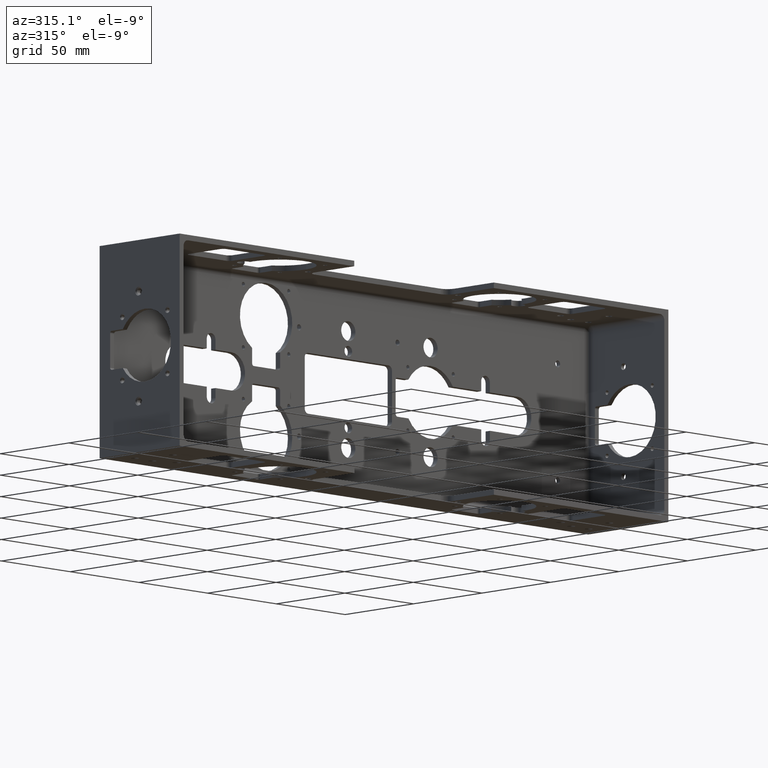
[diagram: clean part render]
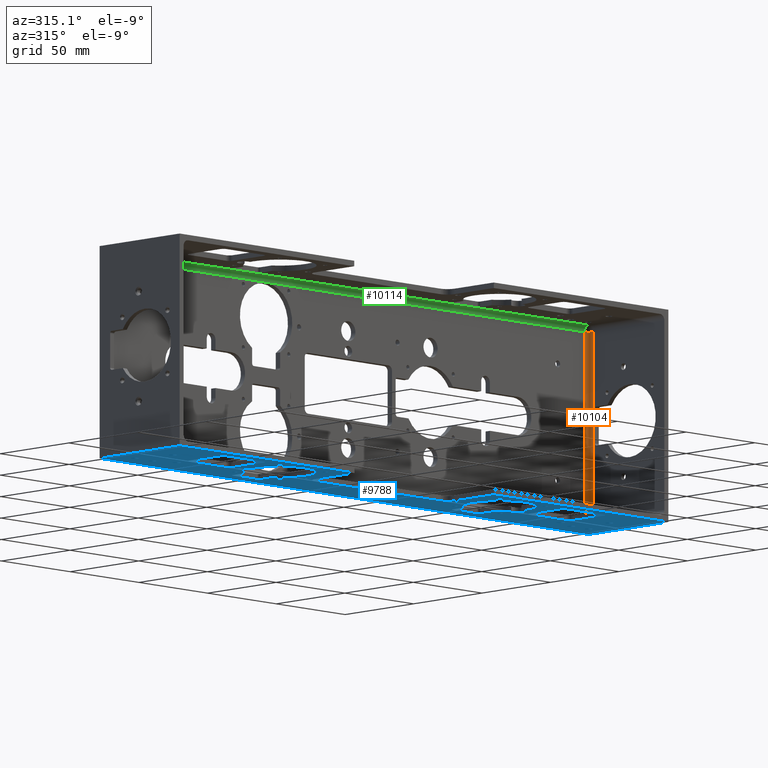
[diagram: same view with three faces highlighted in distinct colors, each labeled with its STEP entity id]
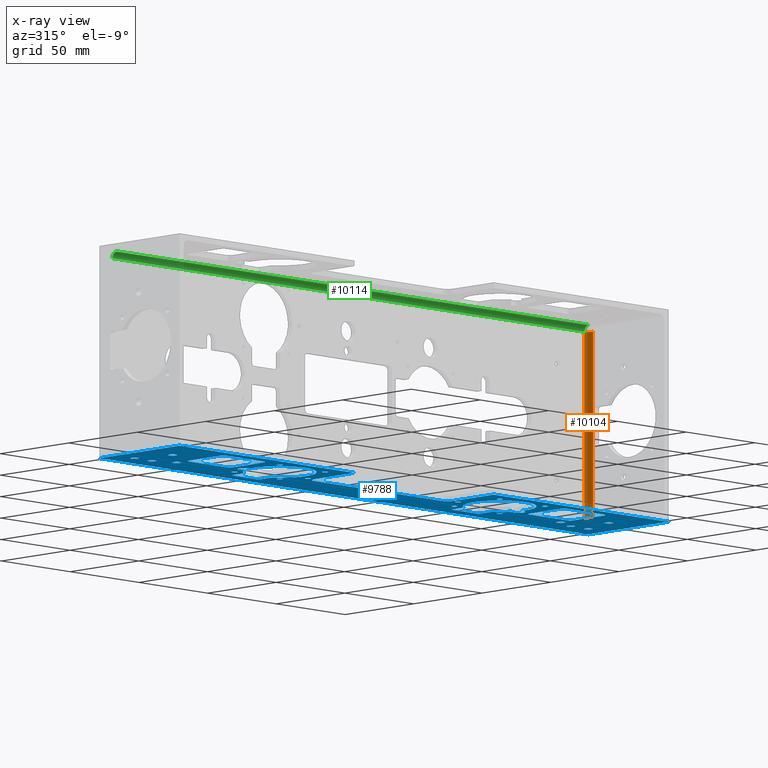
[diagram: x-ray of the same camera — body ghosted, the three highlighted faces saturated]
A machine part, auxiliary view with three faces highlighted in distinct colors.
The next image is the same camera in x-ray (body ghosted, the three faces saturated) — at least one of them is partly hidden behind the body in this view.
Their STEP definitions:

[orange] entity #10104 — the highlighted cylindrical surface (edge-blend (fillet) strip) has radius 3.175 mm, axis along (0, 0, -1).
#68 = CARTESIAN_POINT ( 'NONE',  ( 6.761999999999998700, -0.2500000000000000600, 1.942000000000000200 ) ) ;
#245 = DIRECTION ( 'NONE',  ( 0.0000000000000000000, 0.0000000000000000000, -1.000000000000000000 ) ) ;
#271 = CARTESIAN_POINT ( 'NONE',  ( 6.761999999999998700, -0.1250000000000000300, 2.067000000000000200 ) ) ;
#274 = DIRECTION ( 'NONE',  ( -1.000000000000000000, 0.0000000000000000000, 0.0000000000000000000 ) ) ;
#689 = CARTESIAN_POINT ( 'NONE',  ( 6.887000000000000500, -0.2500000000000000600, -2.067000000000000200 ) ) ;
#736 = DIRECTION ( 'NONE',  ( 0.0000000000000000000, 0.0000000000000000000, 1.000000000000000000 ) ) ;
#804 = DIRECTION ( 'NONE',  ( -0.0000000000000000000, -0.0000000000000000000, -1.000000000000000000 ) ) ;
#966 = ORIENTED_EDGE ( 'NONE', *, *, #7654, .F. ) ;
#1006 = ORIENTED_EDGE ( 'NONE', *, *, #7697, .F. ) ;
#1008 = ORIENTED_EDGE ( 'NONE', *, *, #7498, .T. ) ;
#2379 = DIRECTION ( 'NONE',  ( 0.0000000000000000000, 0.0000000000000000000, -1.000000000000000000 ) ) ;
#2382 = CARTESIAN_POINT ( 'NONE',  ( 6.761999999999998700, -0.2500000000000000600, 2.180000000000000200 ) ) ;
#2384 = DIRECTION ( 'NONE',  ( -1.000000000000000000, 0.0000000000000000000, 0.0000000000000000000 ) ) ;
#2968 = CIRCLE ( 'NONE', #13974, 0.1250000000000004400 ) ;
#3094 = LINE ( 'NONE', #689, #3691 ) ;
#3248 = LINE ( 'NONE', #271, #3460 ) ;
#3459 = CIRCLE ( 'NONE', #13386, 0.1250000000000004400 ) ;
#3460 = VECTOR ( 'NONE', #736, 39.37007874015748100 ) ;
#3691 = VECTOR ( 'NONE', #804, 39.37007874015748100 ) ;
#4527 = DIRECTION ( 'NONE',  ( -0.0000000000000000000, -0.0000000000000000000, -1.000000000000000000 ) ) ;
#4662 = DIRECTION ( 'NONE',  ( 1.000000000000000000, 0.0000000000000000000, 0.0000000000000000000 ) ) ;
#5021 = CARTESIAN_POINT ( 'NONE',  ( 6.761999999999999600, -0.2500000000000000600, -1.942000000000000200 ) ) ;
#6336 = ORIENTED_EDGE ( 'NONE', *, *, #7761, .F. ) ;
#6440 = VERTEX_POINT ( 'NONE', #11787 ) ;
#6645 = VERTEX_POINT ( 'NONE', #12124 ) ;
#6768 = VERTEX_POINT ( 'NONE', #11729 ) ;
#6846 = VERTEX_POINT ( 'NONE', #12211 ) ;
#7498 = EDGE_CURVE ( 'NONE', #6768, #6440, #2968, .T. ) ;
#7654 = EDGE_CURVE ( 'NONE', #6846, #6440, #3094, .T. ) ;
#7697 = EDGE_CURVE ( 'NONE', #6768, #6645, #3248, .T. ) ;
#7761 = EDGE_CURVE ( 'NONE', #6645, #6846, #3459, .T. ) ;
#8557 = CYLINDRICAL_SURFACE ( 'NONE', #12555, 0.1250000000000004400 ) ;
#8695 = FACE_OUTER_BOUND ( 'NONE', #10386, .T. ) ;
#10104 = ADVANCED_FACE ( 'NONE', ( #8695 ), #8557, .F. ) ;
#10386 = EDGE_LOOP ( 'NONE', ( #1008, #966, #6336, #1006 ) ) ;
#11729 = CARTESIAN_POINT ( 'NONE',  ( 6.761999999999998700, -0.1250000000000000300, -1.942000000000000200 ) ) ;
#11787 = CARTESIAN_POINT ( 'NONE',  ( 6.887000000000000500, -0.2500000000000000600, -1.942000000000000200 ) ) ;
#12124 = CARTESIAN_POINT ( 'NONE',  ( 6.761999999999998700, -0.1250000000000000300, 1.942000000000000200 ) ) ;
#12211 = CARTESIAN_POINT ( 'NONE',  ( 6.887000000000000500, -0.2500000000000000600, 1.942000000000000200 ) ) ;
#12555 = AXIS2_PLACEMENT_3D ( 'NONE', #2382, #2379, #2384 ) ;
#13386 = AXIS2_PLACEMENT_3D ( 'NONE', #68, #245, #274 ) ;
#13974 = AXIS2_PLACEMENT_3D ( 'NONE', #5021, #4527, #4662 ) ;

[blue] entity #9788 — the highlighted planar face has unit normal (0, 0, -1).
#9 = DIRECTION ( 'NONE',  ( -0.0000000000000000000, -0.0000000000000000000, 1.000000000000000000 ) ) ;
#65 = DIRECTION ( 'NONE',  ( 0.0000000000000000000, 0.0000000000000000000, 1.000000000000000000 ) ) ;
#67 = DIRECTION ( 'NONE',  ( 0.0000000000000000000, 0.0000000000000000000, 1.000000000000000000 ) ) ;
#79 = DIRECTION ( 'NONE',  ( 0.0000000000000000000, 0.0000000000000000000, 1.000000000000000000 ) ) ;
#85 = DIRECTION ( 'NONE',  ( 0.0000000000000000000, 0.0000000000000000000, 1.000000000000000000 ) ) ;
#106 = DIRECTION ( 'NONE',  ( -1.000000000000000000, 1.365923996832138700E-015, 0.0000000000000000000 ) ) ;
#109 = DIRECTION ( 'NONE',  ( 1.000000000000000000, 0.0000000000000000000, 0.0000000000000000000 ) ) ;
#128 = DIRECTION ( 'NONE',  ( -1.000000000000000000, 0.0000000000000000000, 0.0000000000000000000 ) ) ;
#172 = CARTESIAN_POINT ( 'NONE',  ( 5.500000000000000000, -0.7086614173228345000, -2.180000000000000200 ) ) ;
#242 = CARTESIAN_POINT ( 'NONE',  ( -5.500000000000000000, -0.7086614173228346100, -2.180000000000000200 ) ) ;
#246 = DIRECTION ( 'NONE',  ( 0.0000000000000000000, 0.0000000000000000000, 1.000000000000000000 ) ) ;
#265 = CARTESIAN_POINT ( 'NONE',  ( 4.250000000000000000, -1.069999999999999600, -2.180000000000000200 ) ) ;
#284 = DIRECTION ( 'NONE',  ( 1.000000000000000000, 0.0000000000000000000, 0.0000000000000000000 ) ) ;
#290 = DIRECTION ( 'NONE',  ( 0.0000000000000000000, 0.0000000000000000000, 1.000000000000000000 ) ) ;
#306 = DIRECTION ( 'NONE',  ( 1.000000000000000000, 0.0000000000000000000, 0.0000000000000000000 ) ) ;
#315 = CARTESIAN_POINT ( 'NONE',  ( 6.500000000000000000, -0.5000000000000036600, -2.180000000000000600 ) ) ;
#322 = DIRECTION ( 'NONE',  ( 0.0000000000000000000, 0.0000000000000000000, 1.000000000000000000 ) ) ;
#350 = CARTESIAN_POINT ( 'NONE',  ( -4.250000000000000000, -1.070000000000000500, -2.180000000000000200 ) ) ;
#371 = CARTESIAN_POINT ( 'NONE',  ( 5.400000000000000400, -1.069999999999999400, -2.180000000000000200 ) ) ;
#414 = DIRECTION ( 'NONE',  ( 0.0000000000000000000, 0.0000000000000000000, 1.000000000000000000 ) ) ;
#431 = CARTESIAN_POINT ( 'NONE',  ( -6.500000000000000000, -0.5000000000000000000, -2.180000000000000600 ) ) ;
#444 = DIRECTION ( 'NONE',  ( 1.000000000000000000, 0.0000000000000000000, 0.0000000000000000000 ) ) ;
#459 = CARTESIAN_POINT ( 'NONE',  ( -5.400000000000000400, -1.070000000000000700, -2.180000000000000200 ) ) ;
#462 = DIRECTION ( 'NONE',  ( 0.0000000000000000000, -1.000000000000000000, 0.0000000000000000000 ) ) ;
#498 = DIRECTION ( 'NONE',  ( -1.000000000000000000, 0.0000000000000000000, 0.0000000000000000000 ) ) ;
#516 = DIRECTION ( 'NONE',  ( 1.000000000000000000, 0.0000000000000000000, 0.0000000000000000000 ) ) ;
#524 = DIRECTION ( 'NONE',  ( 1.000000000000000000, 0.0000000000000000000, 0.0000000000000000000 ) ) ;
#535 = CARTESIAN_POINT ( 'NONE',  ( 6.500000000000000000, -0.5000000000000036600, -2.180000000000000600 ) ) ;
#612 = CARTESIAN_POINT ( 'NONE',  ( 2.498999999999999200, -0.6650000000000000400, -2.180000000000000200 ) ) ;
#613 = DIRECTION ( 'NONE',  ( 1.000000000000000000, 0.0000000000000000000, 0.0000000000000000000 ) ) ;
#673 = DIRECTION ( 'NONE',  ( 4.966996352116940900E-015, 1.000000000000000000, 0.0000000000000000000 ) ) ;
#687 = CARTESIAN_POINT ( 'NONE',  ( 3.798999999999999000, -1.964999999999999900, -2.180000000000000200 ) ) ;
#699 = DIRECTION ( 'NONE',  ( 1.000000000000000000, 0.0000000000000000000, 0.0000000000000000000 ) ) ;
#702 = CARTESIAN_POINT ( 'NONE',  ( -3.798999999999999900, -0.6650000000000000400, -2.180000000000000200 ) ) ;
#708 = DIRECTION ( 'NONE',  ( -0.0000000000000000000, -0.0000000000000000000, 1.000000000000000000 ) ) ;
#722 = CARTESIAN_POINT ( 'NONE',  ( 3.930299999999999500, -1.065748031496065700, -2.180000000000000200 ) ) ;
#734 = CARTESIAN_POINT ( 'NONE',  ( 6.000000000000000900, -0.5000000000000034400, -2.180000000000000600 ) ) ;
#765 = DIRECTION ( 'NONE',  ( 0.0000000000000000000, 0.0000000000000000000, 1.000000000000000000 ) ) ;
#767 = DIRECTION ( 'NONE',  ( -0.0000000000000000000, -0.0000000000000000000, 1.000000000000000000 ) ) ;
#788 = DIRECTION ( 'NONE',  ( 1.000000000000000000, 0.0000000000000000000, 0.0000000000000000000 ) ) ;
#1746 = CARTESIAN_POINT ( 'NONE',  ( -5.400000000000003900, -2.049999999999979400, -2.180000000000000200 ) ) ;
#1749 = CARTESIAN_POINT ( 'NONE',  ( 7.000000000000000000, 0.0000000000000000000, -2.180000000000000200 ) ) ;
#1750 = CARTESIAN_POINT ( 'NONE',  ( 5.500000000000000000, -1.069999999999999400, -2.180000000000000200 ) ) ;
#1760 = CARTESIAN_POINT ( 'NONE',  ( -3.899000000000000000, -1.314999999999999900, -2.180000000000000200 ) ) ;
#1776 = CARTESIAN_POINT ( 'NONE',  ( 1.999999999999999800, -1.169999999999998400, -2.180000000000000200 ) ) ;
#1782 = CARTESIAN_POINT ( 'NONE',  ( -4.250000000000000000, -1.070000000000000500, -2.180000000000000200 ) ) ;
#1802 = CARTESIAN_POINT ( 'NONE',  ( 2.798999999999999900, -0.3150000000000011700, -2.180000000000000200 ) ) ;
#1813 = CARTESIAN_POINT ( 'NONE',  ( -3.549000000000000800, -0.3649999999999995500, -2.180000000000000200 ) ) ;
#1817 = CARTESIAN_POINT ( 'NONE',  ( -1.800000000000000300, -0.9699999999999995300, -2.180000000000000200 ) ) ;
#1824 = CARTESIAN_POINT ( 'NONE',  ( -5.500000000000004400, -1.949999999999978400, -2.180000000000000200 ) ) ;
#1837 = CARTESIAN_POINT ( 'NONE',  ( -3.549000000000000800, -0.6805711229775244200, -2.180000000000000200 ) ) ;
#1840 = CARTESIAN_POINT ( 'NONE',  ( 3.890615323850027200, -1.203166590721660000, -2.180000000000000200 ) ) ;
#1856 = CARTESIAN_POINT ( 'NONE',  ( -2.749000000000000100, -0.6805711229775243100, -2.180000000000000600 ) ) ;
#1876 = CARTESIAN_POINT ( 'NONE',  ( -4.349999999999999600, -0.9700000000000005300, -2.180000000000000200 ) ) ;
#1886 = CARTESIAN_POINT ( 'NONE',  ( 2.749000000000000100, -0.3650000000000011600, -2.180000000000000200 ) ) ;
#1889 = CARTESIAN_POINT ( 'NONE',  ( 3.499000000000001000, -0.3150000000000014500, -2.180000000000000200 ) ) ;
#1912 = CARTESIAN_POINT ( 'NONE',  ( 7.000000000000000000, -2.299999999999999800, -2.180000000000000200 ) ) ;
#1924 = CARTESIAN_POINT ( 'NONE',  ( -3.818367102520986200, -0.9766988293507394800, -2.180000000000000200 ) ) ;
#1929 = CARTESIAN_POINT ( 'NONE',  ( -3.890615323850029000, -1.203166590721657800, -2.180000000000000200 ) ) ;
#1947 = CARTESIAN_POINT ( 'NONE',  ( 2.000000000000000400, -2.299999999999998900, -2.180000000000000200 ) ) ;
#1996 = DIRECTION ( 'NONE',  ( -1.000000000000000000, 0.0000000000000000000, 0.0000000000000000000 ) ) ;
#1998 = CARTESIAN_POINT ( 'NONE',  ( -7.000000000000000000, -2.299999999999999800, -2.180000000000000200 ) ) ;
#2424 = DIRECTION ( 'NONE',  ( 1.000000000000000000, 0.0000000000000000000, 0.0000000000000000000 ) ) ;
#2634 = DIRECTION ( 'NONE',  ( 0.0000000000000000000, 0.0000000000000000000, 1.000000000000000000 ) ) ;
#2635 = DIRECTION ( 'NONE',  ( 1.000000000000000000, 0.0000000000000000000, 0.0000000000000000000 ) ) ;
#2648 = CARTESIAN_POINT ( 'NONE',  ( -6.500000000000000000, -0.5000000000000000000, -2.180000000000000600 ) ) ;
#2649 = CARTESIAN_POINT ( 'NONE',  ( 2.498999999999999200, -1.964999999999999900, -2.180000000000000200 ) ) ;
#2654 = CARTESIAN_POINT ( 'NONE',  ( -2.499000000000000100, -0.6650000000000000400, -2.180000000000000200 ) ) ;
#2662 = DIRECTION ( 'NONE',  ( -0.0000000000000000000, -0.0000000000000000000, 1.000000000000000000 ) ) ;
#2666 = DIRECTION ( 'NONE',  ( -0.0000000000000000000, -0.0000000000000000000, 1.000000000000000000 ) ) ;
#2667 = DIRECTION ( 'NONE',  ( -1.000000000000000000, -9.549643466416136700E-016, 0.0000000000000000000 ) ) ;
#2668 = DIRECTION ( 'NONE',  ( -1.000000000000000000, 0.0000000000000000000, 0.0000000000000000000 ) ) ;
#2670 = CARTESIAN_POINT ( 'NONE',  ( -6.000000000000000900, -0.5000000000000000000, -2.180000000000000600 ) ) ;
#2675 = DIRECTION ( 'NONE',  ( 1.000000000000000000, 0.0000000000000000000, 0.0000000000000000000 ) ) ;
#2680 = DIRECTION ( 'NONE',  ( 0.0000000000000000000, 0.0000000000000000000, 1.000000000000000000 ) ) ;
#2700 = CARTESIAN_POINT ( 'NONE',  ( 5.399999999999999500, -0.9699999999999993100, -2.180000000000000200 ) ) ;
#2706 = CARTESIAN_POINT ( 'NONE',  ( 4.349999999999999600, -1.069999999999999600, -2.180000000000000200 ) ) ;
#2710 = DIRECTION ( 'NONE',  ( -1.000000000000000000, -1.300879996982983200E-016, 0.0000000000000000000 ) ) ;
#2715 = CARTESIAN_POINT ( 'NONE',  ( 3.930299999999999500, -1.065748031496065700, -2.180000000000000200 ) ) ;
#2720 = CARTESIAN_POINT ( 'NONE',  ( -5.500000000000000000, -0.7086614173228346100, -2.180000000000000200 ) ) ;
#2722 = DIRECTION ( 'NONE',  ( 0.0000000000000000000, 0.0000000000000000000, 1.000000000000000000 ) ) ;
#2741 = DIRECTION ( 'NONE',  ( -4.966996352116969300E-015, -1.000000000000000000, 0.0000000000000000000 ) ) ;
#2757 = DIRECTION ( 'NONE',  ( 0.0000000000000000000, 0.0000000000000000000, 1.000000000000000000 ) ) ;
#2764 = DIRECTION ( 'NONE',  ( 0.0000000000000000000, 0.0000000000000000000, 1.000000000000000000 ) ) ;
#2765 = CARTESIAN_POINT ( 'NONE',  ( 6.000000000000000900, -0.5000000000000034400, -2.180000000000000600 ) ) ;
#2786 = DIRECTION ( 'NONE',  ( 1.000000000000000000, 0.0000000000000000000, 0.0000000000000000000 ) ) ;
#2790 = CARTESIAN_POINT ( 'NONE',  ( -5.500000000000000000, -1.070000000000000700, -2.180000000000000200 ) ) ;
#2807 = DIRECTION ( 'NONE',  ( 1.000000000000000000, 0.0000000000000000000, 0.0000000000000000000 ) ) ;
#2819 = DIRECTION ( 'NONE',  ( 0.0000000000000000000, 0.0000000000000000000, 1.000000000000000000 ) ) ;
#2822 = DIRECTION ( 'NONE',  ( 1.000000000000000000, 0.0000000000000000000, 0.0000000000000000000 ) ) ;
#2923 = CIRCLE ( 'NONE', #13467, 0.1430340307086612200 ) ;
#2936 = FACE_OUTER_BOUND ( 'NONE', #10503, .T. ) ;
#2956 = FACE_BOUND ( 'NONE', #10390, .T. ) ;
#2969 = FACE_BOUND ( 'NONE', #10665, .T. ) ;
#3013 = CIRCLE ( 'NONE', #13755, 0.08949999999999913600 ) ;
#3042 = CIRCLE ( 'NONE', #13372, 0.09999999999999947800 ) ;
#3045 = CIRCLE ( 'NONE', #13382, 0.08949999999999913600 ) ;
#3056 = FACE_BOUND ( 'NONE', #10565, .T. ) ;
#3084 = LINE ( 'NONE', #350, #3168 ) ;
#3122 = CIRCLE ( 'NONE', #13373, 0.06349999999999893200 ) ;
#3144 = CIRCLE ( 'NONE', #13718, 0.08949999999999913600 ) ;
#3158 = CIRCLE ( 'NONE', #13390, 0.09299999999999925000 ) ;
#3168 = VECTOR ( 'NONE', #673, 39.37007874015748100 ) ;
#3169 = VECTOR ( 'NONE', #462, 39.37007874015748100 ) ;
#3212 = FACE_BOUND ( 'NONE', #10689, .T. ) ;
#3230 = CIRCLE ( 'NONE', #13423, 0.09999999999999947800 ) ;
#3238 = FACE_BOUND ( 'NONE', #10547, .T. ) ;
#3282 = FACE_BOUND ( 'NONE', #6389, .T. ) ;
#3299 = FACE_BOUND ( 'NONE', #10185, .T. ) ;
#3377 = FACE_BOUND ( 'NONE', #10200, .T. ) ;
#3394 = CIRCLE ( 'NONE', #13934, 0.1000000000000000200 ) ;
#3422 = FACE_BOUND ( 'NONE', #10401, .T. ) ;
#3561 = FACE_BOUND ( 'NONE', #6405, .T. ) ;
#3581 = CIRCLE ( 'NONE', #13416, 0.06349999999999893200 ) ;
#3602 = CIRCLE ( 'NONE', #13697, 0.08949999999999913600 ) ;
#3624 = CIRCLE ( 'NONE', #13371, 0.09299999999999925000 ) ;
#3663 = FACE_BOUND ( 'NONE', #10577, .T. ) ;
#3674 = LINE ( 'NONE', #265, #3169 ) ;
#3678 = FACE_BOUND ( 'NONE', #6290, .T. ) ;
#3704 = FACE_BOUND ( 'NONE', #6175, .T. ) ;
#3721 = FACE_BOUND ( 'NONE', #10199, .T. ) ;
#3732 = CIRCLE ( 'NONE', #13740, 0.06349999999999893200 ) ;
#3798 = FACE_BOUND ( 'NONE', #10447, .T. ) ;
#3828 = FACE_BOUND ( 'NONE', #10312, .T. ) ;
#3829 = FACE_BOUND ( 'NONE', #10208, .T. ) ;
#3830 = FACE_BOUND ( 'NONE', #10327, .T. ) ;
#3831 = FACE_BOUND ( 'NONE', #10371, .T. ) ;
#3832 = FACE_BOUND ( 'NONE', #10562, .T. ) ;
#3833 = FACE_BOUND ( 'NONE', #10657, .T. ) ;
#3836 = FACE_BOUND ( 'NONE', #10578, .T. ) ;
#3866 = VECTOR ( 'NONE', #12872, 39.37007874015748100 ) ;
#3868 = LINE ( 'NONE', #12761, #4112 ) ;
#3869 = LINE ( 'NONE', #12834, #4322 ) ;
#3872 = CIRCLE ( 'NONE', #12626, 0.7500000000000002200 ) ;
#3873 = VECTOR ( 'NONE', #12851, 39.37007874015748100 ) ;
#3881 = CIRCLE ( 'NONE', #12440, 0.04999999999999973900 ) ;
#3884 = CIRCLE ( 'NONE', #12600, 0.06349999999999893200 ) ;
#3892 = CIRCLE ( 'NONE', #12645, 0.06349999999999893200 ) ;
#3905 = VECTOR ( 'NONE', #12867, 39.37007874015748100 ) ;
#3924 = CIRCLE ( 'NONE', #12435, 0.2000000000000000400 ) ;
#3926 = LINE ( 'NONE', #12854, #3873 ) ;
#3927 = CIRCLE ( 'NONE', #12590, 0.06349999999999893200 ) ;
#3933 = VECTOR ( 'NONE', #12886, 39.37007874015748100 ) ;
#3939 = CIRCLE ( 'NONE', #12420, 0.1000000000000000200 ) ;
#3940 = VECTOR ( 'NONE', #12755, 39.37007874015748100 ) ;
#3941 = LINE ( 'NONE', #12897, #4082 ) ;
#3946 = LINE ( 'NONE', #2790, #3949 ) ;
#3948 = CIRCLE ( 'NONE', #12561, 0.1000000000000000200 ) ;
#3949 = VECTOR ( 'NONE', #2741, 39.37007874015748100 ) ;
#3951 = CIRCLE ( 'NONE', #12417, 0.09999999999999947800 ) ;
#3960 = LINE ( 'NONE', #12765, #4199 ) ;
#3969 = VECTOR ( 'NONE', #12817, 39.37007874015748100 ) ;
#3982 = LINE ( 'NONE', #12888, #3933 ) ;
#3984 = CIRCLE ( 'NONE', #12418, 0.06349999999999893200 ) ;
#3992 = LINE ( 'NONE', #12865, #4332 ) ;
#4006 = VECTOR ( 'NONE', #12769, 39.37007874015748100 ) ;
#4013 = CIRCLE ( 'NONE', #12494, 0.05999999999999990800 ) ;
#4014 = LINE ( 'NONE', #12868, #4320 ) ;
#4016 = CIRCLE ( 'NONE', #12503, 0.09999999999999947800 ) ;
#4019 = CIRCLE ( 'NONE', #12568, 0.08949999999999913600 ) ;
#4025 = CIRCLE ( 'NONE', #12646, 0.08949999999999913600 ) ;
#4030 = LINE ( 'NONE', #12998, #3866 ) ;
#4037 = CIRCLE ( 'NONE', #12441, 0.7499999999999998900 ) ;
#4038 = CIRCLE ( 'NONE', #12566, 0.08949999999999913600 ) ;
#4041 = LINE ( 'NONE', #12797, #3940 ) ;
#4043 = LINE ( 'NONE', #12913, #4327 ) ;
#4050 = LINE ( 'NONE', #12970, #3905 ) ;
#4053 = LINE ( 'NONE', #12722, #3969 ) ;
#4063 = CIRCLE ( 'NONE', #12594, 0.7499999999999998900 ) ;
#4082 = VECTOR ( 'NONE', #12938, 39.37007874015748100 ) ;
#4083 = CIRCLE ( 'NONE', #12572, 0.08949999999999913600 ) ;
#4089 = CIRCLE ( 'NONE', #12565, 0.09299999999999925000 ) ;
#4106 = DIRECTION ( 'NONE',  ( 1.000000000000000000, 0.0000000000000000000, 0.0000000000000000000 ) ) ;
#4111 = DIRECTION ( 'NONE',  ( 0.0000000000000000000, 0.0000000000000000000, 1.000000000000000000 ) ) ;
#4112 = VECTOR ( 'NONE', #13041, 39.37007874015748100 ) ;
#4118 = CARTESIAN_POINT ( 'NONE',  ( 6.250000000000000000, -1.344000000000003200, -2.180000000000000600 ) ) ;
#4147 = CIRCLE ( 'NONE', #12421, 0.04999999999999973900 ) ;
#4150 = CIRCLE ( 'NONE', #12619, 0.06349999999999893200 ) ;
#4169 = CIRCLE ( 'NONE', #12596, 0.06349999999999893200 ) ;
#4174 = CIRCLE ( 'NONE', #12644, 0.08949999999999913600 ) ;
#4187 = CIRCLE ( 'NONE', #12476, 0.04999999999999973900 ) ;
#4190 = DIRECTION ( 'NONE',  ( 1.000000000000000000, 0.0000000000000000000, 0.0000000000000000000 ) ) ;
#4191 = LINE ( 'NONE', #12763, #4006 ) ;
#4199 = VECTOR ( 'NONE', #12760, 39.37007874015748100 ) ;
#4204 = CIRCLE ( 'NONE', #12436, 0.2000000000000000400 ) ;
#4207 = LINE ( 'NONE', #13132, #4293 ) ;
#4220 = LINE ( 'NONE', #12911, #4310 ) ;
#4221 = CIRCLE ( 'NONE', #12438, 0.1430340307086612200 ) ;
#4236 = DIRECTION ( 'NONE',  ( -0.0000000000000000000, -0.0000000000000000000, 1.000000000000000000 ) ) ;
#4252 = DIRECTION ( 'NONE',  ( -0.0000000000000000000, -0.0000000000000000000, 1.000000000000000000 ) ) ;
#4255 = CARTESIAN_POINT ( 'NONE',  ( 3.499000000000001000, -0.3650000000000014300, -2.180000000000000200 ) ) ;
#4264 = DIRECTION ( 'NONE',  ( -1.000000000000000000, 0.0000000000000000000, 0.0000000000000000000 ) ) ;
#4271 = CARTESIAN_POINT ( 'NONE',  ( 2.150000000000000800, -1.120669297480314100, -2.180000000000000200 ) ) ;
#4293 = VECTOR ( 'NONE', #12880, 39.37007874015748100 ) ;
#4310 = VECTOR ( 'NONE', #12717, 39.37007874015748100 ) ;
#4320 = VECTOR ( 'NONE', #12863, 39.37007874015748100 ) ;
#4322 = VECTOR ( 'NONE', #12842, 39.37007874015748100 ) ;
#4327 = VECTOR ( 'NONE', #12832, 39.37007874015748100 ) ;
#4332 = VECTOR ( 'NONE', #12754, 39.37007874015748100 ) ;
#4393 = CIRCLE ( 'NONE', #12595, 0.06349999999999893200 ) ;
#4434 = DIRECTION ( 'NONE',  ( -1.000000000000000000, 0.0000000000000000000, 0.0000000000000000000 ) ) ;
#4438 = CARTESIAN_POINT ( 'NONE',  ( 3.148999999999999100, -1.315000000000001700, -2.180000000000000200 ) ) ;
#4442 = CIRCLE ( 'NONE', #12442, 0.7499999999999996700 ) ;
#4471 = DIRECTION ( 'NONE',  ( -0.0000000000000000000, -0.0000000000000000000, 1.000000000000000000 ) ) ;
#4601 = DIRECTION ( 'NONE',  ( 0.0000000000000000000, 0.0000000000000000000, 1.000000000000000000 ) ) ;
#4602 = DIRECTION ( 'NONE',  ( 1.000000000000000000, 0.0000000000000000000, 0.0000000000000000000 ) ) ;
#4603 = CARTESIAN_POINT ( 'NONE',  ( 3.798999999999999000, -0.6650000000000000400, -2.180000000000000200 ) ) ;
#4632 = DIRECTION ( 'NONE',  ( -1.000000000000000000, 0.0000000000000000000, 0.0000000000000000000 ) ) ;
#4683 = DIRECTION ( 'NONE',  ( -0.0000000000000000000, -0.0000000000000000000, 1.000000000000000000 ) ) ;
#4685 = CARTESIAN_POINT ( 'NONE',  ( -4.349999999999999600, -1.070000000000000500, -2.180000000000000200 ) ) ;
#4773 = CARTESIAN_POINT ( 'NONE',  ( -3.149000000000000000, -1.314999999999999900, -2.180000000000000200 ) ) ;
#4780 = DIRECTION ( 'NONE',  ( 0.0000000000000000000, 0.0000000000000000000, 1.000000000000000000 ) ) ;
#4836 = CARTESIAN_POINT ( 'NONE',  ( -3.798999999999999900, -1.964999999999999900, -2.180000000000000200 ) ) ;
#4847 = DIRECTION ( 'NONE',  ( 1.000000000000000000, 0.0000000000000000000, 0.0000000000000000000 ) ) ;
#5035 = DIRECTION ( 'NONE',  ( 1.000000000000000000, 0.0000000000000000000, 0.0000000000000000000 ) ) ;
#5036 = DIRECTION ( 'NONE',  ( -1.000000000000000000, 0.0000000000000000000, 0.0000000000000000000 ) ) ;
#5039 = DIRECTION ( 'NONE',  ( 0.0000000000000000000, 0.0000000000000000000, 1.000000000000000000 ) ) ;
#5045 = DIRECTION ( 'NONE',  ( 0.0000000000000000000, 0.0000000000000000000, -1.000000000000000000 ) ) ;
#5057 = CARTESIAN_POINT ( 'NONE',  ( -2.499000000000000100, -0.6650000000000000400, -2.180000000000000200 ) ) ;
#5132 = DIRECTION ( 'NONE',  ( 0.0000000000000000000, 0.0000000000000000000, 1.000000000000000000 ) ) ;
#5172 = CARTESIAN_POINT ( 'NONE',  ( -6.250000000000000000, -1.343999999999999900, -2.180000000000000600 ) ) ;
#5204 = DIRECTION ( 'NONE',  ( -1.000000000000000000, 0.0000000000000000000, 0.0000000000000000000 ) ) ;
#5267 = ORIENTED_EDGE ( 'NONE', *, *, #13902, .T. ) ;
#5277 = ORIENTED_EDGE ( 'NONE', *, *, #14223, .T. ) ;
#5292 = ORIENTED_EDGE ( 'NONE', *, *, #7164, .T. ) ;
#5318 = ORIENTED_EDGE ( 'NONE', *, *, #13904, .T. ) ;
#5330 = ORIENTED_EDGE ( 'NONE', *, *, #14180, .T. ) ;
#5333 = ORIENTED_EDGE ( 'NONE', *, *, #7636, .T. ) ;
#5334 = ORIENTED_EDGE ( 'NONE', *, *, #14195, .T. ) ;
#5348 = ORIENTED_EDGE ( 'NONE', *, *, #14188, .T. ) ;
#5358 = ORIENTED_EDGE ( 'NONE', *, *, #7431, .T. ) ;
#5387 = ORIENTED_EDGE ( 'NONE', *, *, #14162, .T. ) ;
#5400 = ORIENTED_EDGE ( 'NONE', *, *, #14192, .T. ) ;
#5419 = ORIENTED_EDGE ( 'NONE', *, *, #13639, .T. ) ;
#5430 = ORIENTED_EDGE ( 'NONE', *, *, #7271, .F. ) ;
#5445 = ORIENTED_EDGE ( 'NONE', *, *, #14202, .T. ) ;
#5459 = ORIENTED_EDGE ( 'NONE', *, *, #14197, .F. ) ;
#5486 = ORIENTED_EDGE ( 'NONE', *, *, #7125, .T. ) ;
#5489 = ORIENTED_EDGE ( 'NONE', *, *, #13635, .T. ) ;
#5497 = ORIENTED_EDGE ( 'NONE', *, *, #7049, .T. ) ;
#5500 = ORIENTED_EDGE ( 'NONE', *, *, #7839, .T. ) ;
#5502 = ORIENTED_EDGE ( 'NONE', *, *, #14186, .T. ) ;
#5503 = ORIENTED_EDGE ( 'NONE', *, *, #7366, .T. ) ;
#5505 = ORIENTED_EDGE ( 'NONE', *, *, #14134, .T. ) ;
#5535 = ORIENTED_EDGE ( 'NONE', *, *, #14151, .F. ) ;
#5548 = ORIENTED_EDGE ( 'NONE', *, *, #7724, .T. ) ;
#5584 = ORIENTED_EDGE ( 'NONE', *, *, #14165, .T. ) ;
#5599 = ORIENTED_EDGE ( 'NONE', *, *, #14198, .T. ) ;
#5608 = ORIENTED_EDGE ( 'NONE', *, *, #14152, .T. ) ;
#5611 = ORIENTED_EDGE ( 'NONE', *, *, #14148, .T. ) ;
#5627 = ORIENTED_EDGE ( 'NONE', *, *, #7039, .F. ) ;
#5636 = ORIENTED_EDGE ( 'NONE', *, *, #14196, .T. ) ;
#5637 = ORIENTED_EDGE ( 'NONE', *, *, #7814, .T. ) ;
#5668 = ORIENTED_EDGE ( 'NONE', *, *, #7231, .T. ) ;
#5697 = ORIENTED_EDGE ( 'NONE', *, *, #14161, .T. ) ;
#5711 = ORIENTED_EDGE ( 'NONE', *, *, #14131, .T. ) ;
#5713 = ORIENTED_EDGE ( 'NONE', *, *, #14200, .T. ) ;
#5739 = ORIENTED_EDGE ( 'NONE', *, *, #7600, .T. ) ;
#5744 = ORIENTED_EDGE ( 'NONE', *, *, #7686, .T. ) ;
#5748 = ORIENTED_EDGE ( 'NONE', *, *, #7072, .T. ) ;
#5749 = ORIENTED_EDGE ( 'NONE', *, *, #7560, .T. ) ;
#5757 = ORIENTED_EDGE ( 'NONE', *, *, #7016, .T. ) ;
#5773 = ORIENTED_EDGE ( 'NONE', *, *, #7733, .T. ) ;
#5781 = ORIENTED_EDGE ( 'NONE', *, *, #7817, .T. ) ;
#5782 = ORIENTED_EDGE ( 'NONE', *, *, #14160, .T. ) ;
#5789 = ORIENTED_EDGE ( 'NONE', *, *, #7142, .T. ) ;
#5808 = ORIENTED_EDGE ( 'NONE', *, *, #14182, .T. ) ;
#5856 = ORIENTED_EDGE ( 'NONE', *, *, #13900, .T. ) ;
#5859 = ORIENTED_EDGE ( 'NONE', *, *, #14226, .T. ) ;
#5864 = ORIENTED_EDGE ( 'NONE', *, *, #7316, .T. ) ;
#5874 = ORIENTED_EDGE ( 'NONE', *, *, #14132, .T. ) ;
#5918 = ORIENTED_EDGE ( 'NONE', *, *, #13780, .T. ) ;
#5935 = ORIENTED_EDGE ( 'NONE', *, *, #14177, .T. ) ;
#5936 = ORIENTED_EDGE ( 'NONE', *, *, #7036, .T. ) ;
#5937 = ORIENTED_EDGE ( 'NONE', *, *, #7824, .T. ) ;
#5946 = ORIENTED_EDGE ( 'NONE', *, *, #14194, .T. ) ;
#5949 = ORIENTED_EDGE ( 'NONE', *, *, #14191, .T. ) ;
#5953 = ORIENTED_EDGE ( 'NONE', *, *, #14184, .T. ) ;
#5958 = ORIENTED_EDGE ( 'NONE', *, *, #13903, .T. ) ;
#5960 = ORIENTED_EDGE ( 'NONE', *, *, #7297, .T. ) ;
#5963 = ORIENTED_EDGE ( 'NONE', *, *, #14181, .T. ) ;
#6035 = ORIENTED_EDGE ( 'NONE', *, *, #13909, .T. ) ;
#6044 = ORIENTED_EDGE ( 'NONE', *, *, #7737, .T. ) ;
#6061 = ORIENTED_EDGE ( 'NONE', *, *, #7741, .T. ) ;
#6069 = ORIENTED_EDGE ( 'NONE', *, *, #13771, .T. ) ;
#6075 = ORIENTED_EDGE ( 'NONE', *, *, #7008, .T. ) ;
#6078 = ORIENTED_EDGE ( 'NONE', *, *, #14179, .T. ) ;
#6081 = ORIENTED_EDGE ( 'NONE', *, *, #7286, .T. ) ;
#6087 = ORIENTED_EDGE ( 'NONE', *, *, #13848, .T. ) ;
#6090 = ORIENTED_EDGE ( 'NONE', *, *, #14204, .T. ) ;
#6120 = ORIENTED_EDGE ( 'NONE', *, *, #14133, .T. ) ;
#6122 = ORIENTED_EDGE ( 'NONE', *, *, #14190, .T. ) ;
#6165 = ORIENTED_EDGE ( 'NONE', *, *, #7066, .T. ) ;
#6175 = EDGE_LOOP ( 'NONE', ( #6393, #6035 ) ) ;
#6248 = ORIENTED_EDGE ( 'NONE', *, *, #14163, .T. ) ;
#6273 = ORIENTED_EDGE ( 'NONE', *, *, #14153, .T. ) ;
#6290 = EDGE_LOOP ( 'NONE', ( #6069, #6364 ) ) ;
#6306 = ORIENTED_EDGE ( 'NONE', *, *, #7759, .T. ) ;
#6346 = ORIENTED_EDGE ( 'NONE', *, *, #14150, .T. ) ;
#6364 = ORIENTED_EDGE ( 'NONE', *, *, #14154, .T. ) ;
#6369 = ORIENTED_EDGE ( 'NONE', *, *, #13636, .T. ) ;
#6385 = ORIENTED_EDGE ( 'NONE', *, *, #14187, .F. ) ;
#6388 = ORIENTED_EDGE ( 'NONE', *, *, #14228, .T. ) ;
#6389 = EDGE_LOOP ( 'NONE', ( #6061, #5387 ) ) ;
#6393 = ORIENTED_EDGE ( 'NONE', *, *, #7721, .T. ) ;
#6395 = ORIENTED_EDGE ( 'NONE', *, *, #14189, .T. ) ;
#6396 = ORIENTED_EDGE ( 'NONE', *, *, #14149, .T. ) ;
#6405 = EDGE_LOOP ( 'NONE', ( #5864, #5608 ) ) ;
#6413 = ORIENTED_EDGE ( 'NONE', *, *, #7001, .F. ) ;
#6424 = VERTEX_POINT ( 'NONE', #6751 ) ;
#6434 = VERTEX_POINT ( 'NONE', #12026 ) ;
#6435 = VERTEX_POINT ( 'NONE', #11855 ) ;
#6441 = VERTEX_POINT ( 'NONE', #11788 ) ;
#6447 = VERTEX_POINT ( 'NONE', #12066 ) ;
#6450 = VERTEX_POINT ( 'NONE', #11930 ) ;
#6456 = VERTEX_POINT ( 'NONE', #11921 ) ;
#6462 = VERTEX_POINT ( 'NONE', #12141 ) ;
#6492 = VERTEX_POINT ( 'NONE', #11701 ) ;
#6500 = VERTEX_POINT ( 'NONE', #12256 ) ;
#6524 = VERTEX_POINT ( 'NONE', #11581 ) ;
#6525 = VERTEX_POINT ( 'NONE', #11497 ) ;
#6528 = VERTEX_POINT ( 'NONE', #12146 ) ;
#6529 = VERTEX_POINT ( 'NONE', #12049 ) ;
#6538 = VERTEX_POINT ( 'NONE', #11897 ) ;
#6543 = VERTEX_POINT ( 'NONE', #12250 ) ;
#6553 = VERTEX_POINT ( 'NONE', #11813 ) ;
#6556 = VERTEX_POINT ( 'NONE', #11838 ) ;
#6563 = VERTEX_POINT ( 'NONE', #11421 ) ;
#6573 = VERTEX_POINT ( 'NONE', #11561 ) ;
#6577 = VERTEX_POINT ( 'NONE', #12167 ) ;
#6582 = VERTEX_POINT ( 'NONE', #11751 ) ;
#6613 = VERTEX_POINT ( 'NONE', #11764 ) ;
#6630 = VERTEX_POINT ( 'NONE', #12029 ) ;
#6637 = VERTEX_POINT ( 'NONE', #11796 ) ;
#6648 = VERTEX_POINT ( 'NONE', #11706 ) ;
#6650 = VERTEX_POINT ( 'NONE', #11592 ) ;
#6676 = VERTEX_POINT ( 'NONE', #12032 ) ;
#6680 = VERTEX_POINT ( 'NONE', #11530 ) ;
#6684 = VERTEX_POINT ( 'NONE', #11417 ) ;
#6690 = VERTEX_POINT ( 'NONE', #11583 ) ;
#6701 = VERTEX_POINT ( 'NONE', #11548 ) ;
#6744 = VERTEX_POINT ( 'NONE', #11918 ) ;
#6751 = CARTESIAN_POINT ( 'NONE',  ( 6.339499999999999200, -1.344000000000003200, -2.180000000000000600 ) ) ;
#6756 = VERTEX_POINT ( 'NONE', #11881 ) ;
#6759 = VERTEX_POINT ( 'NONE', #12258 ) ;
#6769 = VERTEX_POINT ( 'NONE', #11719 ) ;
#6770 = VERTEX_POINT ( 'NONE', #11414 ) ;
#6771 = VERTEX_POINT ( 'NONE', #11776 ) ;
#6782 = VERTEX_POINT ( 'NONE', #12099 ) ;
#6783 = VERTEX_POINT ( 'NONE', #12319 ) ;
#6789 = VERTEX_POINT ( 'NONE', #12080 ) ;
#6790 = VERTEX_POINT ( 'NONE', #12078 ) ;
#6796 = VERTEX_POINT ( 'NONE', #11750 ) ;
#6801 = VERTEX_POINT ( 'NONE', #12157 ) ;
#6804 = VERTEX_POINT ( 'NONE', #11823 ) ;
#6811 = VERTEX_POINT ( 'NONE', #12195 ) ;
#6842 = VERTEX_POINT ( 'NONE', #12096 ) ;
#6843 = VERTEX_POINT ( 'NONE', #12056 ) ;
#6861 = VERTEX_POINT ( 'NONE', #11691 ) ;
#6863 = VERTEX_POINT ( 'NONE', #11648 ) ;
#6866 = VERTEX_POINT ( 'NONE', #11669 ) ;
#6874 = VERTEX_POINT ( 'NONE', #11659 ) ;
#6888 = VERTEX_POINT ( 'NONE', #11666 ) ;
#6896 = VERTEX_POINT ( 'NONE', #11683 ) ;
#6903 = VERTEX_POINT ( 'NONE', #11429 ) ;
#6919 = VERTEX_POINT ( 'NONE', #11433 ) ;
#6922 = VERTEX_POINT ( 'NONE', #11568 ) ;
#6934 = VERTEX_POINT ( 'NONE', #11456 ) ;
#6940 = VERTEX_POINT ( 'NONE', #11458 ) ;
#6944 = VERTEX_POINT ( 'NONE', #11461 ) ;
#6956 = VERTEX_POINT ( 'NONE', #11661 ) ;
#6962 = VERTEX_POINT ( 'NONE', #11532 ) ;
#6970 = VERTEX_POINT ( 'NONE', #11606 ) ;
#7001 = EDGE_CURVE ( 'NONE', #6782, #6843, #8825, .T. ) ;
#7008 = EDGE_CURVE ( 'NONE', #11423, #6771, #8821, .T. ) ;
#7016 = EDGE_CURVE ( 'NONE', #6956, #6896, #8932, .T. ) ;
#7036 = EDGE_CURVE ( 'NONE', #6801, #6524, #9280, .T. ) ;
#7039 = EDGE_CURVE ( 'NONE', #6811, #6759, #9679, .T. ) ;
#7049 = EDGE_CURVE ( 'NONE', #6888, #11826, #9259, .T. ) ;
#7066 = EDGE_CURVE ( 'NONE', #11744, #11607, #8847, .T. ) ;
#7072 = EDGE_CURVE ( 'NONE', #6863, #6582, #8912, .T. ) ;
#7125 = EDGE_CURVE ( 'NONE', #6613, #6888, #9570, .T. ) ;
#7142 = EDGE_CURVE ( 'NONE', #6630, #6434, #9080, .T. ) ;
#7164 = EDGE_CURVE ( 'NONE', #6970, #6492, #8824, .T. ) ;
#7231 = EDGE_CURVE ( 'NONE', #6573, #6435, #8983, .T. ) ;
#7271 = EDGE_CURVE ( 'NONE', #6843, #6782, #9015, .T. ) ;
#7286 = EDGE_CURVE ( 'NONE', #6462, #12161, #8987, .T. ) ;
#7297 = EDGE_CURVE ( 'NONE', #6771, #12062, #9611, .T. ) ;
#7316 = EDGE_CURVE ( 'NONE', #6861, #6500, #9333, .T. ) ;
#7366 = EDGE_CURVE ( 'NONE', #6804, #6424, #9081, .T. ) ;
#7431 = EDGE_CURVE ( 'NONE', #11845, #12140, #3394, .T. ) ;
#7560 = EDGE_CURVE ( 'NONE', #6789, #6874, #3602, .T. ) ;
#7600 = EDGE_CURVE ( 'NONE', #6940, #6456, #3144, .T. ) ;
#7636 = EDGE_CURVE ( 'NONE', #6919, #6447, #3732, .T. ) ;
#7686 = EDGE_CURVE ( 'NONE', #6874, #6789, #3013, .T. ) ;
#7721 = EDGE_CURVE ( 'NONE', #6770, #6903, #3045, .T. ) ;
#7724 = EDGE_CURVE ( 'NONE', #11506, #6648, #3042, .T. ) ;
#7733 = EDGE_CURVE ( 'NONE', #6525, #6944, #3122, .T. ) ;
#7737 = EDGE_CURVE ( 'NONE', #6553, #6744, #3624, .T. ) ;
#7741 = EDGE_CURVE ( 'NONE', #6529, #6701, #3158, .T. ) ;
#7759 = EDGE_CURVE ( 'NONE', #6962, #6556, #2923, .T. ) ;
#7814 = EDGE_CURVE ( 'NONE', #6783, #11845, #3084, .T. ) ;
#7817 = EDGE_CURVE ( 'NONE', #6582, #6863, #3581, .T. ) ;
#7824 = EDGE_CURVE ( 'NONE', #6676, #6577, #3230, .T. ) ;
#7839 = EDGE_CURVE ( 'NONE', #6690, #6769, #3674, .T. ) ;
#7847 = CIRCLE ( 'NONE', #12539, 0.08949999999999913600 ) ;
#7955 = VECTOR ( 'NONE', #1996, 39.37007874015748100 ) ;
#7968 = CIRCLE ( 'NONE', #12515, 0.09299999999999925000 ) ;
#7982 = VECTOR ( 'NONE', #2710, 39.37007874015748100 ) ;
#8034 = LINE ( 'NONE', #1998, #7955 ) ;
#8219 = LINE ( 'NONE', #2700, #7982 ) ;
#8669 = CIRCLE ( 'NONE', #12481, 0.1000000000000000200 ) ;
#8706 = CIRCLE ( 'NONE', #12482, 0.1430340307086612200 ) ;
#8821 = CIRCLE ( 'NONE', #13654, 0.7499999999999998900 ) ;
#8824 = CIRCLE ( 'NONE', #13137, 0.06349999999999893200 ) ;
#8825 = CIRCLE ( 'NONE', #13649, 0.05999999999999990800 ) ;
#8847 = LINE ( 'NONE', #12377, #8887 ) ;
#8887 = VECTOR ( 'NONE', #12381, 39.37007874015748100 ) ;
#8912 = CIRCLE ( 'NONE', #13679, 0.06349999999999893200 ) ;
#8932 = CIRCLE ( 'NONE', #13659, 0.06349999999999893200 ) ;
#8983 = CIRCLE ( 'NONE', #13188, 0.06349999999999893200 ) ;
#8987 = CIRCLE ( 'NONE', #14018, 0.04999999999999973900 ) ;
#9015 = CIRCLE ( 'NONE', #14009, 0.05999999999999990800 ) ;
#9080 = CIRCLE ( 'NONE', #13163, 0.06349999999999893200 ) ;
#9081 = CIRCLE ( 'NONE', #14070, 0.08949999999999913600 ) ;
#9259 = CIRCLE ( 'NONE', #13691, 0.7499999999999996700 ) ;
#9280 = CIRCLE ( 'NONE', #13664, 0.06349999999999893200 ) ;
#9333 = CIRCLE ( 'NONE', #14034, 0.08949999999999913600 ) ;
#9570 = CIRCLE ( 'NONE', #13199, 0.7499999999999996700 ) ;
#9611 = CIRCLE ( 'NONE', #14025, 0.7499999999999998900 ) ;
#9679 = CIRCLE ( 'NONE', #13669, 0.05999999999999990800 ) ;
#9788 = ADVANCED_FACE ( 'NONE', ( #3798, #3056, #3704, #3678, #3561, #3238, #3212, #3422, #3663, #3282, #3299, #3828, #3832, #3830, #3829, #3831, #3833, #3836, #2956, #2969, #3377, #3721, #2936 ), #10879, .T. ) ;
#10185 = EDGE_LOOP ( 'NONE', ( #5292, #5856 ) ) ;
#10199 = EDGE_LOOP ( 'NONE', ( #5963, #6075, #5960, #5946, #5949, #5599, #6122, #6165, #5348, #5636 ) ) ;
#10200 = EDGE_LOOP ( 'NONE', ( #5859, #5502, #5486, #5497, #6369, #6306, #5330, #6078, #6081, #5808, #5953 ) ) ;
#10208 = EDGE_LOOP ( 'NONE', ( #5936, #5318 ) ) ;
#10312 = EDGE_LOOP ( 'NONE', ( #5773, #5782 ) ) ;
#10327 = EDGE_LOOP ( 'NONE', ( #5757, #5505 ) ) ;
#10371 = EDGE_LOOP ( 'NONE', ( #5333, #5711 ) ) ;
#10390 = EDGE_LOOP ( 'NONE', ( #5958, #6346, #6396, #6248, #5637, #5358, #5611, #5937 ) ) ;
#10401 = EDGE_LOOP ( 'NONE', ( #5749, #5744 ) ) ;
#10447 = EDGE_LOOP ( 'NONE', ( #5535, #5627 ) ) ;
#10503 = EDGE_LOOP ( 'NONE', ( #5400, #6090, #5713, #6087, #6273, #5459, #6385, #6395, #5334, #5445 ) ) ;
#10547 = EDGE_LOOP ( 'NONE', ( #5503, #5697 ) ) ;
#10562 = EDGE_LOOP ( 'NONE', ( #5668, #6120 ) ) ;
#10565 = EDGE_LOOP ( 'NONE', ( #6413, #5430 ) ) ;
#10577 = EDGE_LOOP ( 'NONE', ( #5918, #6044 ) ) ;
#10578 = EDGE_LOOP ( 'NONE', ( #5748, #5781 ) ) ;
#10657 = EDGE_LOOP ( 'NONE', ( #5789, #5874 ) ) ;
#10665 = EDGE_LOOP ( 'NONE', ( #5500, #6388, #5277, #5584, #5935, #5548, #5489, #5419 ) ) ;
#10689 = EDGE_LOOP ( 'NONE', ( #5739, #5267 ) ) ;
#10810 = DIRECTION ( 'NONE',  ( 0.0000000000000000000, 0.0000000000000000000, -1.000000000000000000 ) ) ;
#10853 = DIRECTION ( 'NONE',  ( -1.000000000000000000, 0.0000000000000000000, 0.0000000000000000000 ) ) ;
#10876 = CARTESIAN_POINT ( 'NONE',  ( -7.000000000000000000, -2.299999999999999800, -2.180000000000000200 ) ) ;
#10879 = PLANE ( 'NONE',  #13575 ) ;
#11327 = CARTESIAN_POINT ( 'NONE',  ( 2.150000000000000800, -1.120669297480314100, -2.180000000000000200 ) ) ;
#11343 = DIRECTION ( 'NONE',  ( 0.0000000000000000000, 0.0000000000000000000, -1.000000000000000000 ) ) ;
#11344 = DIRECTION ( 'NONE',  ( -1.000000000000000000, 0.0000000000000000000, 0.0000000000000000000 ) ) ;
#11352 = DIRECTION ( 'NONE',  ( -0.0000000000000000000, -0.0000000000000000000, 1.000000000000000000 ) ) ;
#11361 = VERTEX_POINT ( 'NONE', #1749 ) ;
#11369 = VERTEX_POINT ( 'NONE', #1746 ) ;
#11371 = DIRECTION ( 'NONE',  ( 1.000000000000000000, 0.0000000000000000000, 0.0000000000000000000 ) ) ;
#11372 = DIRECTION ( 'NONE',  ( 0.0000000000000000000, 0.0000000000000000000, 1.000000000000000000 ) ) ;
#11414 = CARTESIAN_POINT ( 'NONE',  ( -6.589499999999999200, -0.5000000000000000000, -2.180000000000000600 ) ) ;
#11417 = CARTESIAN_POINT ( 'NONE',  ( 4.350000000000000500, -2.049999999999999800, -2.180000000000000200 ) ) ;
#11421 = CARTESIAN_POINT ( 'NONE',  ( -2.749000000000000100, -0.3649999999999995500, -2.180000000000000200 ) ) ;
#11423 = VERTEX_POINT ( 'NONE', #1760 ) ;
#11429 = CARTESIAN_POINT ( 'NONE',  ( -6.410500000000000800, -0.5000000000000000000, -2.180000000000000600 ) ) ;
#11433 = CARTESIAN_POINT ( 'NONE',  ( 3.735500000000000000, -1.964999999999999900, -2.180000000000000200 ) ) ;
#11456 = CARTESIAN_POINT ( 'NONE',  ( -2.000000000000000000, -2.299999999999999400, -2.180000000000000200 ) ) ;
#11458 = CARTESIAN_POINT ( 'NONE',  ( 5.910500000000001600, -0.5000000000000034400, -2.180000000000000600 ) ) ;
#11461 = CARTESIAN_POINT ( 'NONE',  ( -3.735500000000001400, -0.6650000000000000400, -2.180000000000000200 ) ) ;
#11497 = CARTESIAN_POINT ( 'NONE',  ( -3.862499999999998900, -0.6650000000000000400, -2.180000000000000200 ) ) ;
#11506 = VERTEX_POINT ( 'NONE', #1750 ) ;
#11530 = CARTESIAN_POINT ( 'NONE',  ( 3.549000000000000800, -0.6805711229775265300, -2.180000000000000200 ) ) ;
#11532 = CARTESIAN_POINT ( 'NONE',  ( 4.073334030708660500, -1.065748031496065700, -2.180000000000000200 ) ) ;
#11548 = CARTESIAN_POINT ( 'NONE',  ( 5.592999999999999100, -0.7086614173228345000, -2.180000000000000200 ) ) ;
#11561 = CARTESIAN_POINT ( 'NONE',  ( -3.862499999999998900, -1.964999999999999900, -2.180000000000000200 ) ) ;
#11568 = CARTESIAN_POINT ( 'NONE',  ( 2.749000000000000100, -0.6805711229775256400, -2.180000000000000600 ) ) ;
#11581 = CARTESIAN_POINT ( 'NONE',  ( 2.562499999999998200, -1.964999999999999900, -2.180000000000000200 ) ) ;
#11583 = CARTESIAN_POINT ( 'NONE',  ( 4.250000000000000000, -1.069999999999999600, -2.180000000000000200 ) ) ;
#11592 = CARTESIAN_POINT ( 'NONE',  ( -6.089499999999999200, -0.5000000000000000000, -2.180000000000000600 ) ) ;
#11606 = CARTESIAN_POINT ( 'NONE',  ( -2.562499999999999100, -0.6650000000000000400, -2.180000000000000200 ) ) ;
#11607 = VERTEX_POINT ( 'NONE', #1837 ) ;
#11648 = CARTESIAN_POINT ( 'NONE',  ( 2.435500000000000200, -0.6650000000000000400, -2.180000000000000200 ) ) ;
#11659 = CARTESIAN_POINT ( 'NONE',  ( 6.589499999999999200, -0.5000000000000036600, -2.180000000000000600 ) ) ;
#11661 = CARTESIAN_POINT ( 'NONE',  ( -2.562499999999999100, -1.964999999999999900, -2.180000000000000200 ) ) ;
#11666 = CARTESIAN_POINT ( 'NONE',  ( 3.898999999999999100, -1.315000000000001700, -2.180000000000000200 ) ) ;
#11669 = CARTESIAN_POINT ( 'NONE',  ( 4.349999999999999600, -0.9699999999999995300, -2.180000000000000200 ) ) ;
#11683 = CARTESIAN_POINT ( 'NONE',  ( -2.435500000000001600, -1.964999999999999900, -2.180000000000000200 ) ) ;
#11691 = CARTESIAN_POINT ( 'NONE',  ( -6.339499999999999200, -1.343999999999999900, -2.180000000000000600 ) ) ;
#11701 = CARTESIAN_POINT ( 'NONE',  ( -2.435500000000001600, -0.6650000000000000400, -2.180000000000000200 ) ) ;
#11706 = CARTESIAN_POINT ( 'NONE',  ( 5.399999999999999500, -0.9699999999999996400, -2.180000000000000200 ) ) ;
#11719 = CARTESIAN_POINT ( 'NONE',  ( 4.250000000000000000, -1.949999999999999100, -2.180000000000000200 ) ) ;
#11722 = VERTEX_POINT ( 'NONE', #1802 ) ;
#11742 = CARTESIAN_POINT ( 'NONE',  ( -2.499000000000000100, -1.964999999999999900, -2.180000000000000200 ) ) ;
#11744 = VERTEX_POINT ( 'NONE', #1813 ) ;
#11750 = CARTESIAN_POINT ( 'NONE',  ( 1.799999999999999600, -0.9699999999999984200, -2.180000000000000200 ) ) ;
#11751 = CARTESIAN_POINT ( 'NONE',  ( 2.562499999999998200, -0.6650000000000000400, -2.180000000000000200 ) ) ;
#11764 = CARTESIAN_POINT ( 'NONE',  ( 2.398999999999999600, -1.315000000000001700, -2.180000000000000200 ) ) ;
#11769 = VERTEX_POINT ( 'NONE', #1817 ) ;
#11771 = VERTEX_POINT ( 'NONE', #1824 ) ;
#11776 = CARTESIAN_POINT ( 'NONE',  ( -2.399000000000000500, -1.314999999999999900, -2.180000000000000200 ) ) ;
#11788 = CARTESIAN_POINT ( 'NONE',  ( 5.399999999999999500, -2.049999999999999800, -2.180000000000000200 ) ) ;
#11796 = CARTESIAN_POINT ( 'NONE',  ( -2.000000000000000400, -1.169999999999999500, -2.180000000000000200 ) ) ;
#11813 = CARTESIAN_POINT ( 'NONE',  ( -5.407000000000000900, -0.7086614173228346100, -2.180000000000000200 ) ) ;
#11823 = CARTESIAN_POINT ( 'NONE',  ( 6.160500000000000800, -1.344000000000003200, -2.180000000000000600 ) ) ;
#11826 = VERTEX_POINT ( 'NONE', #1840 ) ;
#11838 = CARTESIAN_POINT ( 'NONE',  ( 3.818367102520985300, -0.9766988293507415900, -2.180000000000000200 ) ) ;
#11845 = VERTEX_POINT ( 'NONE', #1782 ) ;
#11855 = CARTESIAN_POINT ( 'NONE',  ( -3.735500000000001400, -1.964999999999999900, -2.180000000000000200 ) ) ;
#11870 = VERTEX_POINT ( 'NONE', #1776 ) ;
#11881 = CARTESIAN_POINT ( 'NONE',  ( -2.798999999999999900, -0.3149999999999996700, -2.180000000000000200 ) ) ;
#11897 = CARTESIAN_POINT ( 'NONE',  ( -3.499000000000001000, -0.3149999999999995000, -2.180000000000000200 ) ) ;
#11918 = CARTESIAN_POINT ( 'NONE',  ( -5.592999999999999100, -0.7086614173228346100, -2.180000000000000200 ) ) ;
#11921 = CARTESIAN_POINT ( 'NONE',  ( 6.089499999999999200, -0.5000000000000034400, -2.180000000000000600 ) ) ;
#11928 = VERTEX_POINT ( 'NONE', #1912 ) ;
#11930 = CARTESIAN_POINT ( 'NONE',  ( 5.500000000000000000, -1.949999999999999100, -2.180000000000000200 ) ) ;
#12023 = VERTEX_POINT ( 'NONE', #1924 ) ;
#12026 = CARTESIAN_POINT ( 'NONE',  ( 3.862499999999998000, -0.6650000000000000400, -2.180000000000000200 ) ) ;
#12029 = CARTESIAN_POINT ( 'NONE',  ( 3.735500000000000000, -0.6650000000000000400, -2.180000000000000200 ) ) ;
#12032 = CARTESIAN_POINT ( 'NONE',  ( -5.399999999999999500, -0.9700000000000007500, -2.180000000000000200 ) ) ;
#12049 = CARTESIAN_POINT ( 'NONE',  ( 5.407000000000000900, -0.7086614173228345000, -2.180000000000000200 ) ) ;
#12056 = CARTESIAN_POINT ( 'NONE',  ( 2.210000000000000900, -1.120669297480314100, -2.180000000000000200 ) ) ;
#12062 = VERTEX_POINT ( 'NONE', #1856 ) ;
#12066 = CARTESIAN_POINT ( 'NONE',  ( 3.862499999999998000, -1.964999999999999900, -2.180000000000000200 ) ) ;
#12078 = CARTESIAN_POINT ( 'NONE',  ( -4.350000000000005000, -2.049999999999983400, -2.180000000000000200 ) ) ;
#12080 = CARTESIAN_POINT ( 'NONE',  ( 6.410500000000000800, -0.5000000000000036600, -2.180000000000000600 ) ) ;
#12096 = CARTESIAN_POINT ( 'NONE',  ( -7.000000000000000000, -2.299999999999999800, -2.180000000000000200 ) ) ;
#12099 = CARTESIAN_POINT ( 'NONE',  ( 2.090000000000000700, -1.120669297480314100, -2.180000000000000200 ) ) ;
#12140 = VERTEX_POINT ( 'NONE', #1876 ) ;
#12141 = CARTESIAN_POINT ( 'NONE',  ( 3.549000000000000800, -0.3650000000000014300, -2.180000000000000200 ) ) ;
#12146 = CARTESIAN_POINT ( 'NONE',  ( -7.000000000000000000, 0.0000000000000000000, -2.180000000000000200 ) ) ;
#12153 = VERTEX_POINT ( 'NONE', #1886 ) ;
#12157 = CARTESIAN_POINT ( 'NONE',  ( 2.435500000000000200, -1.964999999999999900, -2.180000000000000200 ) ) ;
#12161 = VERTEX_POINT ( 'NONE', #1889 ) ;
#12167 = CARTESIAN_POINT ( 'NONE',  ( -5.500000000000000000, -1.070000000000000700, -2.180000000000000200 ) ) ;
#12195 = CARTESIAN_POINT ( 'NONE',  ( -2.090000000000000300, -1.120669297480314700, -2.180000000000000200 ) ) ;
#12196 = VERTEX_POINT ( 'NONE', #1947 ) ;
#12203 = VERTEX_POINT ( 'NONE', #1929 ) ;
#12209 = DIRECTION ( 'NONE',  ( 0.0000000000000000000, 0.0000000000000000000, 1.000000000000000000 ) ) ;
#12217 = CARTESIAN_POINT ( 'NONE',  ( 2.498999999999999200, -1.964999999999999900, -2.180000000000000200 ) ) ;
#12224 = DIRECTION ( 'NONE',  ( 1.000000000000000000, 0.0000000000000000000, 0.0000000000000000000 ) ) ;
#12241 = CARTESIAN_POINT ( 'NONE',  ( -3.149000000000000000, -1.314999999999999900, -2.180000000000000200 ) ) ;
#12242 = DIRECTION ( 'NONE',  ( -1.000000000000000000, 0.0000000000000000000, 0.0000000000000000000 ) ) ;
#12250 = CARTESIAN_POINT ( 'NONE',  ( -5.910500000000001600, -0.5000000000000000000, -2.180000000000000600 ) ) ;
#12256 = CARTESIAN_POINT ( 'NONE',  ( -6.160500000000000800, -1.343999999999999900, -2.180000000000000600 ) ) ;
#12258 = CARTESIAN_POINT ( 'NONE',  ( -2.210000000000000400, -1.120669297480314700, -2.180000000000000200 ) ) ;
#12299 = DIRECTION ( 'NONE',  ( 0.0000000000000000000, 0.0000000000000000000, -1.000000000000000000 ) ) ;
#12303 = CARTESIAN_POINT ( 'NONE',  ( -2.150000000000000400, -1.120669297480314700, -2.180000000000000200 ) ) ;
#12311 = DIRECTION ( 'NONE',  ( -1.000000000000000000, 0.0000000000000000000, 0.0000000000000000000 ) ) ;
#12318 = DIRECTION ( 'NONE',  ( -0.0000000000000000000, -0.0000000000000000000, 1.000000000000000000 ) ) ;
#12319 = CARTESIAN_POINT ( 'NONE',  ( -4.250000000000004400, -1.949999999999983300, -2.180000000000000200 ) ) ;
#12331 = DIRECTION ( 'NONE',  ( -1.000000000000000000, 0.0000000000000000000, 0.0000000000000000000 ) ) ;
#12369 = CARTESIAN_POINT ( 'NONE',  ( 3.148999999999999100, -1.315000000000001700, -2.180000000000000200 ) ) ;
#12377 = CARTESIAN_POINT ( 'NONE',  ( -3.549000000000000800, -0.3649999999999995500, -2.180000000000000200 ) ) ;
#12381 = DIRECTION ( 'NONE',  ( 0.0000000000000000000, -1.000000000000000000, 0.0000000000000000000 ) ) ;
#12392 = CARTESIAN_POINT ( 'NONE',  ( 2.498999999999999200, -0.6650000000000000400, -2.180000000000000200 ) ) ;
#12394 = DIRECTION ( 'NONE',  ( 1.000000000000000000, 0.0000000000000000000, 0.0000000000000000000 ) ) ;
#12395 = DIRECTION ( 'NONE',  ( 0.0000000000000000000, 0.0000000000000000000, 1.000000000000000000 ) ) ;
#12417 = AXIS2_PLACEMENT_3D ( 'NONE', #13024, #12889, #13114 ) ;
#12418 = AXIS2_PLACEMENT_3D ( 'NONE', #12780, #12875, #12821 ) ;
#12420 = AXIS2_PLACEMENT_3D ( 'NONE', #12995, #12805, #12787 ) ;
#12421 = AXIS2_PLACEMENT_3D ( 'NONE', #12759, #12838, #12922 ) ;
#12435 = AXIS2_PLACEMENT_3D ( 'NONE', #12926, #12947, #12919 ) ;
#12436 = AXIS2_PLACEMENT_3D ( 'NONE', #12939, #12987, #12833 ) ;
#12438 = AXIS2_PLACEMENT_3D ( 'NONE', #12748, #12910, #12839 ) ;
#12440 = AXIS2_PLACEMENT_3D ( 'NONE', #12912, #13002, #12814 ) ;
#12441 = AXIS2_PLACEMENT_3D ( 'NONE', #12778, #12767, #12891 ) ;
#12442 = AXIS2_PLACEMENT_3D ( 'NONE', #13039, #12798, #12762 ) ;
#12476 = AXIS2_PLACEMENT_3D ( 'NONE', #12908, #12818, #12799 ) ;
#12481 = AXIS2_PLACEMENT_3D ( 'NONE', #2706, #2666, #2668 ) ;
#12482 = AXIS2_PLACEMENT_3D ( 'NONE', #2715, #2662, #2667 ) ;
#12494 = AXIS2_PLACEMENT_3D ( 'NONE', #13017, #13117, #12882 ) ;
#12503 = AXIS2_PLACEMENT_3D ( 'NONE', #12968, #12980, #12982 ) ;
#12515 = AXIS2_PLACEMENT_3D ( 'NONE', #2720, #2634, #2635 ) ;
#12539 = AXIS2_PLACEMENT_3D ( 'NONE', #2670, #2680, #2675 ) ;
#12561 = AXIS2_PLACEMENT_3D ( 'NONE', #12965, #12960, #12962 ) ;
#12565 = AXIS2_PLACEMENT_3D ( 'NONE', #12973, #12961, #12969 ) ;
#12566 = AXIS2_PLACEMENT_3D ( 'NONE', #12983, #12964, #12967 ) ;
#12568 = AXIS2_PLACEMENT_3D ( 'NONE', #13079, #12990, #12984 ) ;
#12572 = AXIS2_PLACEMENT_3D ( 'NONE', #13076, #13126, #12849 ) ;
#12590 = AXIS2_PLACEMENT_3D ( 'NONE', #12989, #12959, #12958 ) ;
#12594 = AXIS2_PLACEMENT_3D ( 'NONE', #13028, #13050, #13016 ) ;
#12595 = AXIS2_PLACEMENT_3D ( 'NONE', #13054, #12850, #12873 ) ;
#12596 = AXIS2_PLACEMENT_3D ( 'NONE', #13066, #12776, #13056 ) ;
#12600 = AXIS2_PLACEMENT_3D ( 'NONE', #12800, #12823, #12845 ) ;
#12619 = AXIS2_PLACEMENT_3D ( 'NONE', #2649, #2819, #2822 ) ;
#12626 = AXIS2_PLACEMENT_3D ( 'NONE', #12941, #12747, #13051 ) ;
#12644 = AXIS2_PLACEMENT_3D ( 'NONE', #2765, #2764, #2786 ) ;
#12645 = AXIS2_PLACEMENT_3D ( 'NONE', #2654, #2722, #2807 ) ;
#12646 = AXIS2_PLACEMENT_3D ( 'NONE', #2648, #2757, #2424 ) ;
#12717 = DIRECTION ( 'NONE',  ( -1.000000000000000000, 9.756599977372352600E-017, 0.0000000000000000000 ) ) ;
#12722 = CARTESIAN_POINT ( 'NONE',  ( 5.500000000000000000, -1.069999999999999400, -2.180000000000000200 ) ) ;
#12747 = DIRECTION ( 'NONE',  ( -0.0000000000000000000, -0.0000000000000000000, 1.000000000000000000 ) ) ;
#12748 = CARTESIAN_POINT ( 'NONE',  ( -3.930300000000000300, -1.065748031496063500, -2.180000000000000200 ) ) ;
#12754 = DIRECTION ( 'NONE',  ( 0.0000000000000000000, 1.000000000000000000, 0.0000000000000000000 ) ) ;
#12755 = DIRECTION ( 'NONE',  ( -1.000000000000000000, 0.0000000000000000000, 0.0000000000000000000 ) ) ;
#12759 = CARTESIAN_POINT ( 'NONE',  ( -2.798999999999999900, -0.3649999999999995500, -2.180000000000000200 ) ) ;
#12760 = DIRECTION ( 'NONE',  ( 0.0000000000000000000, 1.000000000000000000, 0.0000000000000000000 ) ) ;
#12761 = CARTESIAN_POINT ( 'NONE',  ( -2.000000000000000400, -0.9699999999999995300, -2.180000000000000200 ) ) ;
#12762 = DIRECTION ( 'NONE',  ( -1.000000000000000000, -1.821231995776176300E-015, 0.0000000000000000000 ) ) ;
#12763 = CARTESIAN_POINT ( 'NONE',  ( -2.749000000000000100, -0.3649999999999995500, -2.180000000000000200 ) ) ;
#12765 = CARTESIAN_POINT ( 'NONE',  ( 7.000000000000000000, -2.299999999999999800, -2.180000000000000200 ) ) ;
#12767 = DIRECTION ( 'NONE',  ( -0.0000000000000000000, -0.0000000000000000000, 1.000000000000000000 ) ) ;
#12769 = DIRECTION ( 'NONE',  ( 0.0000000000000000000, 1.000000000000000000, 0.0000000000000000000 ) ) ;
#12776 = DIRECTION ( 'NONE',  ( 0.0000000000000000000, 0.0000000000000000000, 1.000000000000000000 ) ) ;
#12778 = CARTESIAN_POINT ( 'NONE',  ( -3.149000000000000000, -1.314999999999999900, -2.180000000000000200 ) ) ;
#12780 = CARTESIAN_POINT ( 'NONE',  ( -2.499000000000000100, -1.964999999999999900, -2.180000000000000200 ) ) ;
#12787 = DIRECTION ( 'NONE',  ( -1.000000000000000000, 0.0000000000000000000, 0.0000000000000000000 ) ) ;
#12797 = CARTESIAN_POINT ( 'NONE',  ( -7.000000000000000000, 0.0000000000000000000, -2.180000000000000200 ) ) ;
#12798 = DIRECTION ( 'NONE',  ( -0.0000000000000000000, -0.0000000000000000000, 1.000000000000000000 ) ) ;
#12799 = DIRECTION ( 'NONE',  ( -1.000000000000000000, 0.0000000000000000000, 0.0000000000000000000 ) ) ;
#12800 = CARTESIAN_POINT ( 'NONE',  ( 3.798999999999999000, -0.6650000000000000400, -2.180000000000000200 ) ) ;
#12805 = DIRECTION ( 'NONE',  ( -0.0000000000000000000, -0.0000000000000000000, 1.000000000000000000 ) ) ;
#12814 = DIRECTION ( 'NONE',  ( -1.000000000000000000, 0.0000000000000000000, 0.0000000000000000000 ) ) ;
#12817 = DIRECTION ( 'NONE',  ( 0.0000000000000000000, 1.000000000000000000, 0.0000000000000000000 ) ) ;
#12818 = DIRECTION ( 'NONE',  ( -0.0000000000000000000, -0.0000000000000000000, 1.000000000000000000 ) ) ;
#12821 = DIRECTION ( 'NONE',  ( 1.000000000000000000, 0.0000000000000000000, 0.0000000000000000000 ) ) ;
#12823 = DIRECTION ( 'NONE',  ( 0.0000000000000000000, 0.0000000000000000000, 1.000000000000000000 ) ) ;
#12832 = DIRECTION ( 'NONE',  ( 2.054021047867867100E-016, -1.000000000000000000, 0.0000000000000000000 ) ) ;
#12833 = DIRECTION ( 'NONE',  ( -1.000000000000000000, 0.0000000000000000000, 0.0000000000000000000 ) ) ;
#12834 = CARTESIAN_POINT ( 'NONE',  ( 2.749000000000000100, -0.3650000000000008800, -2.180000000000000200 ) ) ;
#12838 = DIRECTION ( 'NONE',  ( -0.0000000000000000000, -0.0000000000000000000, 1.000000000000000000 ) ) ;
#12839 = DIRECTION ( 'NONE',  ( -1.000000000000000000, 0.0000000000000000000, 0.0000000000000000000 ) ) ;
#12842 = DIRECTION ( 'NONE',  ( 0.0000000000000000000, -1.000000000000000000, 0.0000000000000000000 ) ) ;
#12845 = DIRECTION ( 'NONE',  ( 1.000000000000000000, 0.0000000000000000000, 0.0000000000000000000 ) ) ;
#12849 = DIRECTION ( 'NONE',  ( 1.000000000000000000, 0.0000000000000000000, 0.0000000000000000000 ) ) ;
#12850 = DIRECTION ( 'NONE',  ( 0.0000000000000000000, 0.0000000000000000000, 1.000000000000000000 ) ) ;
#12851 = DIRECTION ( 'NONE',  ( -1.000000000000000000, 2.926979993211706200E-016, 0.0000000000000000000 ) ) ;
#12854 = CARTESIAN_POINT ( 'NONE',  ( 2.798999999999999900, -0.3150000000000011700, -2.180000000000000200 ) ) ;
#12863 = DIRECTION ( 'NONE',  ( 1.000000000000000000, 2.601759993965967900E-016, 0.0000000000000000000 ) ) ;
#12865 = CARTESIAN_POINT ( 'NONE',  ( 3.549000000000000800, -0.3650000000000014300, -2.180000000000000200 ) ) ;
#12867 = DIRECTION ( 'NONE',  ( -1.000000000000000000, 0.0000000000000000000, 0.0000000000000000000 ) ) ;
#12868 = CARTESIAN_POINT ( 'NONE',  ( 5.399999999999999500, -2.049999999999999800, -2.180000000000000200 ) ) ;
#12872 = DIRECTION ( 'NONE',  ( -1.000000000000000000, -1.300879996982983200E-016, 0.0000000000000000000 ) ) ;
#12873 = DIRECTION ( 'NONE',  ( 1.000000000000000000, 0.0000000000000000000, 0.0000000000000000000 ) ) ;
#12875 = DIRECTION ( 'NONE',  ( 0.0000000000000000000, 0.0000000000000000000, 1.000000000000000000 ) ) ;
#12880 = DIRECTION ( 'NONE',  ( 1.000000000000000000, -3.902639990948952200E-015, 0.0000000000000000000 ) ) ;
#12882 = DIRECTION ( 'NONE',  ( -1.000000000000000000, 0.0000000000000000000, 0.0000000000000000000 ) ) ;
#12886 = DIRECTION ( 'NONE',  ( 0.0000000000000000000, 1.000000000000000000, 0.0000000000000000000 ) ) ;
#12888 = CARTESIAN_POINT ( 'NONE',  ( -7.000000000000000000, -2.299999999999999800, -2.180000000000000200 ) ) ;
#12889 = DIRECTION ( 'NONE',  ( -0.0000000000000000000, -0.0000000000000000000, 1.000000000000000000 ) ) ;
#12891 = DIRECTION ( 'NONE',  ( -1.000000000000000000, 0.0000000000000000000, 0.0000000000000000000 ) ) ;
#12897 = CARTESIAN_POINT ( 'NONE',  ( 1.999999999999999800, -0.9699999999999984200, -2.180000000000000200 ) ) ;
#12908 = CARTESIAN_POINT ( 'NONE',  ( 2.798999999999999900, -0.3650000000000011600, -2.180000000000000200 ) ) ;
#12910 = DIRECTION ( 'NONE',  ( -0.0000000000000000000, -0.0000000000000000000, 1.000000000000000000 ) ) ;
#12911 = CARTESIAN_POINT ( 'NONE',  ( -2.798999999999999900, -0.3149999999999995000, -2.180000000000000200 ) ) ;
#12912 = CARTESIAN_POINT ( 'NONE',  ( -3.499000000000001000, -0.3649999999999995500, -2.180000000000000200 ) ) ;
#12913 = CARTESIAN_POINT ( 'NONE',  ( -2.000000000000000400, -0.9699999999999995300, -2.180000000000000200 ) ) ;
#12919 = DIRECTION ( 'NONE',  ( -1.000000000000000000, 0.0000000000000000000, 0.0000000000000000000 ) ) ;
#12922 = DIRECTION ( 'NONE',  ( -1.000000000000000000, 0.0000000000000000000, 0.0000000000000000000 ) ) ;
#12926 = CARTESIAN_POINT ( 'NONE',  ( -1.800000000000000300, -1.169999999999999500, -2.180000000000000200 ) ) ;
#12938 = DIRECTION ( 'NONE',  ( -6.162063143603598100E-016, 1.000000000000000000, 0.0000000000000000000 ) ) ;
#12939 = CARTESIAN_POINT ( 'NONE',  ( 1.799999999999999600, -1.169999999999998400, -2.180000000000000200 ) ) ;
#12941 = CARTESIAN_POINT ( 'NONE',  ( 3.148999999999999100, -1.315000000000001700, -2.180000000000000200 ) ) ;
#12947 = DIRECTION ( 'NONE',  ( -0.0000000000000000000, -0.0000000000000000000, 1.000000000000000000 ) ) ;
#12958 = DIRECTION ( 'NONE',  ( 1.000000000000000000, 0.0000000000000000000, 0.0000000000000000000 ) ) ;
#12959 = DIRECTION ( 'NONE',  ( 0.0000000000000000000, 0.0000000000000000000, 1.000000000000000000 ) ) ;
#12960 = DIRECTION ( 'NONE',  ( -0.0000000000000000000, -0.0000000000000000000, 1.000000000000000000 ) ) ;
#12961 = DIRECTION ( 'NONE',  ( 0.0000000000000000000, 0.0000000000000000000, 1.000000000000000000 ) ) ;
#12962 = DIRECTION ( 'NONE',  ( -1.000000000000000000, 0.0000000000000000000, 0.0000000000000000000 ) ) ;
#12964 = DIRECTION ( 'NONE',  ( 0.0000000000000000000, 0.0000000000000000000, 1.000000000000000000 ) ) ;
#12965 = CARTESIAN_POINT ( 'NONE',  ( -4.350000000000004100, -1.949999999999983500, -2.180000000000000200 ) ) ;
#12967 = DIRECTION ( 'NONE',  ( 1.000000000000000000, 0.0000000000000000000, 0.0000000000000000000 ) ) ;
#12968 = CARTESIAN_POINT ( 'NONE',  ( 5.400000000000000400, -1.949999999999999700, -2.180000000000000200 ) ) ;
#12969 = DIRECTION ( 'NONE',  ( 1.000000000000000000, 0.0000000000000000000, 0.0000000000000000000 ) ) ;
#12970 = CARTESIAN_POINT ( 'NONE',  ( -7.000000000000000000, -2.299999999999999800, -2.180000000000000200 ) ) ;
#12973 = CARTESIAN_POINT ( 'NONE',  ( 5.500000000000000000, -0.7086614173228345000, -2.180000000000000200 ) ) ;
#12980 = DIRECTION ( 'NONE',  ( -0.0000000000000000000, -0.0000000000000000000, 1.000000000000000000 ) ) ;
#12982 = DIRECTION ( 'NONE',  ( -1.000000000000000000, 0.0000000000000000000, 0.0000000000000000000 ) ) ;
#12983 = CARTESIAN_POINT ( 'NONE',  ( 6.250000000000000000, -1.344000000000003200, -2.180000000000000600 ) ) ;
#12984 = DIRECTION ( 'NONE',  ( 1.000000000000000000, 0.0000000000000000000, 0.0000000000000000000 ) ) ;
#12987 = DIRECTION ( 'NONE',  ( -0.0000000000000000000, -0.0000000000000000000, 1.000000000000000000 ) ) ;
#12989 = CARTESIAN_POINT ( 'NONE',  ( -3.798999999999999900, -0.6650000000000000400, -2.180000000000000200 ) ) ;
#12990 = DIRECTION ( 'NONE',  ( 0.0000000000000000000, 0.0000000000000000000, 1.000000000000000000 ) ) ;
#12995 = CARTESIAN_POINT ( 'NONE',  ( 4.349999999999999600, -1.950000000000000000, -2.180000000000000200 ) ) ;
#12998 = CARTESIAN_POINT ( 'NONE',  ( -5.399999999999999500, -0.9700000000000007500, -2.180000000000000200 ) ) ;
#13002 = DIRECTION ( 'NONE',  ( -0.0000000000000000000, -0.0000000000000000000, 1.000000000000000000 ) ) ;
#13016 = DIRECTION ( 'NONE',  ( -1.000000000000000000, 1.675533436114081600E-014, 0.0000000000000000000 ) ) ;
#13017 = CARTESIAN_POINT ( 'NONE',  ( -2.150000000000000400, -1.120669297480314700, -2.180000000000000200 ) ) ;
#13024 = CARTESIAN_POINT ( 'NONE',  ( -5.400000000000004800, -1.949999999999979500, -2.180000000000000200 ) ) ;
#13028 = CARTESIAN_POINT ( 'NONE',  ( -3.149000000000000000, -1.314999999999999900, -2.180000000000000200 ) ) ;
#13039 = CARTESIAN_POINT ( 'NONE',  ( 3.148999999999999100, -1.315000000000001700, -2.180000000000000200 ) ) ;
#13041 = DIRECTION ( 'NONE',  ( -1.000000000000000000, -2.731847993664263200E-016, 0.0000000000000000000 ) ) ;
#13050 = DIRECTION ( 'NONE',  ( -0.0000000000000000000, -0.0000000000000000000, 1.000000000000000000 ) ) ;
#13051 = DIRECTION ( 'NONE',  ( -1.000000000000000000, 2.549724794086644500E-015, 0.0000000000000000000 ) ) ;
#13054 = CARTESIAN_POINT ( 'NONE',  ( -3.798999999999999900, -1.964999999999999900, -2.180000000000000200 ) ) ;
#13056 = DIRECTION ( 'NONE',  ( 1.000000000000000000, 0.0000000000000000000, 0.0000000000000000000 ) ) ;
#13066 = CARTESIAN_POINT ( 'NONE',  ( 3.798999999999999000, -1.964999999999999900, -2.180000000000000200 ) ) ;
#13076 = CARTESIAN_POINT ( 'NONE',  ( -6.250000000000000000, -1.343999999999999900, -2.180000000000000600 ) ) ;
#13079 = CARTESIAN_POINT ( 'NONE',  ( -6.000000000000000900, -0.5000000000000000000, -2.180000000000000600 ) ) ;
#13114 = DIRECTION ( 'NONE',  ( -1.000000000000000000, 0.0000000000000000000, 0.0000000000000000000 ) ) ;
#13117 = DIRECTION ( 'NONE',  ( 0.0000000000000000000, 0.0000000000000000000, -1.000000000000000000 ) ) ;
#13126 = DIRECTION ( 'NONE',  ( 0.0000000000000000000, 0.0000000000000000000, 1.000000000000000000 ) ) ;
#13132 = CARTESIAN_POINT ( 'NONE',  ( -5.400000000000003900, -2.049999999999979400, -2.180000000000000200 ) ) ;
#13137 = AXIS2_PLACEMENT_3D ( 'NONE', #5057, #5039, #5035 ) ;
#13163 = AXIS2_PLACEMENT_3D ( 'NONE', #4603, #4601, #4602 ) ;
#13188 = AXIS2_PLACEMENT_3D ( 'NONE', #4836, #4780, #4847 ) ;
#13199 = AXIS2_PLACEMENT_3D ( 'NONE', #4438, #4471, #4434 ) ;
#13371 = AXIS2_PLACEMENT_3D ( 'NONE', #242, #322, #306 ) ;
#13372 = AXIS2_PLACEMENT_3D ( 'NONE', #371, #708, #498 ) ;
#13373 = AXIS2_PLACEMENT_3D ( 'NONE', #702, #79, #788 ) ;
#13382 = AXIS2_PLACEMENT_3D ( 'NONE', #431, #290, #284 ) ;
#13390 = AXIS2_PLACEMENT_3D ( 'NONE', #172, #67, #444 ) ;
#13416 = AXIS2_PLACEMENT_3D ( 'NONE', #612, #765, #516 ) ;
#13423 = AXIS2_PLACEMENT_3D ( 'NONE', #459, #9, #106 ) ;
#13467 = AXIS2_PLACEMENT_3D ( 'NONE', #722, #767, #128 ) ;
#13575 = AXIS2_PLACEMENT_3D ( 'NONE', #10876, #10810, #10853 ) ;
#13635 = EDGE_CURVE ( 'NONE', #6648, #6866, #8219, .T. ) ;
#13636 = EDGE_CURVE ( 'NONE', #11826, #6962, #8706, .T. ) ;
#13639 = EDGE_CURVE ( 'NONE', #6866, #6690, #8669, .T. ) ;
#13649 = AXIS2_PLACEMENT_3D ( 'NONE', #11327, #11343, #11344 ) ;
#13654 = AXIS2_PLACEMENT_3D ( 'NONE', #12241, #11352, #12242 ) ;
#13659 = AXIS2_PLACEMENT_3D ( 'NONE', #11742, #11372, #11371 ) ;
#13664 = AXIS2_PLACEMENT_3D ( 'NONE', #12217, #12209, #12224 ) ;
#13669 = AXIS2_PLACEMENT_3D ( 'NONE', #12303, #12299, #12311 ) ;
#13679 = AXIS2_PLACEMENT_3D ( 'NONE', #12392, #12395, #12394 ) ;
#13691 = AXIS2_PLACEMENT_3D ( 'NONE', #12369, #12318, #12331 ) ;
#13697 = AXIS2_PLACEMENT_3D ( 'NONE', #535, #414, #524 ) ;
#13718 = AXIS2_PLACEMENT_3D ( 'NONE', #734, #85, #613 ) ;
#13740 = AXIS2_PLACEMENT_3D ( 'NONE', #687, #65, #699 ) ;
#13755 = AXIS2_PLACEMENT_3D ( 'NONE', #315, #246, #109 ) ;
#13771 = EDGE_CURVE ( 'NONE', #6650, #6543, #7847, .T. ) ;
#13780 = EDGE_CURVE ( 'NONE', #6744, #6553, #7968, .T. ) ;
#13848 = EDGE_CURVE ( 'NONE', #6934, #6842, #8034, .T. ) ;
#13900 = EDGE_CURVE ( 'NONE', #6492, #6970, #3892, .T. ) ;
#13902 = EDGE_CURVE ( 'NONE', #6456, #6940, #4174, .T. ) ;
#13903 = EDGE_CURVE ( 'NONE', #6577, #11771, #3946, .T. ) ;
#13904 = EDGE_CURVE ( 'NONE', #6524, #6801, #4150, .T. ) ;
#13909 = EDGE_CURVE ( 'NONE', #6903, #6770, #4025, .T. ) ;
#13934 = AXIS2_PLACEMENT_3D ( 'NONE', #4685, #4683, #4632 ) ;
#14009 = AXIS2_PLACEMENT_3D ( 'NONE', #4271, #5045, #5036 ) ;
#14018 = AXIS2_PLACEMENT_3D ( 'NONE', #4255, #4252, #5204 ) ;
#14025 = AXIS2_PLACEMENT_3D ( 'NONE', #4773, #4236, #4264 ) ;
#14034 = AXIS2_PLACEMENT_3D ( 'NONE', #5172, #5132, #4190 ) ;
#14070 = AXIS2_PLACEMENT_3D ( 'NONE', #4118, #4111, #4106 ) ;
#14131 = EDGE_CURVE ( 'NONE', #6447, #6919, #4169, .T. ) ;
#14132 = EDGE_CURVE ( 'NONE', #6434, #6630, #3884, .T. ) ;
#14133 = EDGE_CURVE ( 'NONE', #6435, #6573, #4393, .T. ) ;
#14134 = EDGE_CURVE ( 'NONE', #6896, #6956, #3984, .T. ) ;
#14148 = EDGE_CURVE ( 'NONE', #12140, #6676, #4030, .T. ) ;
#14149 = EDGE_CURVE ( 'NONE', #11369, #6790, #4207, .T. ) ;
#14150 = EDGE_CURVE ( 'NONE', #11771, #11369, #3951, .T. ) ;
#14151 = EDGE_CURVE ( 'NONE', #6759, #6811, #4013, .T. ) ;
#14152 = EDGE_CURVE ( 'NONE', #6500, #6861, #4083, .T. ) ;
#14153 = EDGE_CURVE ( 'NONE', #6842, #6528, #3982, .T. ) ;
#14154 = EDGE_CURVE ( 'NONE', #6543, #6650, #4019, .T. ) ;
#14160 = EDGE_CURVE ( 'NONE', #6944, #6525, #3927, .T. ) ;
#14161 = EDGE_CURVE ( 'NONE', #6424, #6804, #4038, .T. ) ;
#14162 = EDGE_CURVE ( 'NONE', #6701, #6529, #4089, .T. ) ;
#14163 = EDGE_CURVE ( 'NONE', #6790, #6783, #3948, .T. ) ;
#14165 = EDGE_CURVE ( 'NONE', #6441, #6450, #4016, .T. ) ;
#14177 = EDGE_CURVE ( 'NONE', #6450, #11506, #4053, .T. ) ;
#14179 = EDGE_CURVE ( 'NONE', #6680, #6462, #3992, .T. ) ;
#14180 = EDGE_CURVE ( 'NONE', #6556, #6680, #3872, .T. ) ;
#14181 = EDGE_CURVE ( 'NONE', #12203, #11423, #4063, .T. ) ;
#14182 = EDGE_CURVE ( 'NONE', #12161, #11722, #3926, .T. ) ;
#14184 = EDGE_CURVE ( 'NONE', #11722, #12153, #4187, .T. ) ;
#14186 = EDGE_CURVE ( 'NONE', #6922, #6613, #4442, .T. ) ;
#14187 = EDGE_CURVE ( 'NONE', #11928, #11361, #3960, .T. ) ;
#14188 = EDGE_CURVE ( 'NONE', #11607, #12023, #4037, .T. ) ;
#14189 = EDGE_CURVE ( 'NONE', #11928, #12196, #4050, .T. ) ;
#14190 = EDGE_CURVE ( 'NONE', #6538, #11744, #3881, .T. ) ;
#14191 = EDGE_CURVE ( 'NONE', #6563, #6756, #4147, .T. ) ;
#14192 = EDGE_CURVE ( 'NONE', #6796, #11769, #3868, .T. ) ;
#14194 = EDGE_CURVE ( 'NONE', #12062, #6563, #4191, .T. ) ;
#14195 = EDGE_CURVE ( 'NONE', #12196, #11870, #3941, .T. ) ;
#14196 = EDGE_CURVE ( 'NONE', #12023, #12203, #4221, .T. ) ;
#14197 = EDGE_CURVE ( 'NONE', #11361, #6528, #4041, .T. ) ;
#14198 = EDGE_CURVE ( 'NONE', #6756, #6538, #4220, .T. ) ;
#14200 = EDGE_CURVE ( 'NONE', #6637, #6934, #4043, .T. ) ;
#14202 = EDGE_CURVE ( 'NONE', #11870, #6796, #4204, .T. ) ;
#14204 = EDGE_CURVE ( 'NONE', #11769, #6637, #3924, .T. ) ;
#14223 = EDGE_CURVE ( 'NONE', #6684, #6441, #4014, .T. ) ;
#14226 = EDGE_CURVE ( 'NONE', #12153, #6922, #3869, .T. ) ;
#14228 = EDGE_CURVE ( 'NONE', #6769, #6684, #3939, .T. ) ;

[green] entity #10114 — the highlighted cylindrical surface (edge-blend (fillet) strip) has radius 3.175 mm, axis along (1, 0, 0).
#1025 = ORIENTED_EDGE ( 'NONE', *, *, #7194, .F. ) ;
#1069 = ORIENTED_EDGE ( 'NONE', *, *, #7234, .F. ) ;
#1091 = ORIENTED_EDGE ( 'NONE', *, *, #6988, .F. ) ;
#1212 = ORIENTED_EDGE ( 'NONE', *, *, #7106, .T. ) ;
#1831 = CARTESIAN_POINT ( 'NONE',  ( -6.761999999999999600, -0.1250000000000000300, 1.942000000000000200 ) ) ;
#1938 = CARTESIAN_POINT ( 'NONE',  ( -6.761999999999999600, -0.2500000000000000600, 2.067000000000000200 ) ) ;
#1944 = CARTESIAN_POINT ( 'NONE',  ( 6.761999999999999600, -0.2500000000000000600, 2.067000000000000200 ) ) ;
#2356 = DIRECTION ( 'NONE',  ( 1.000000000000000000, 0.0000000000000000000, 0.0000000000000000000 ) ) ;
#2416 = DIRECTION ( 'NONE',  ( 0.0000000000000000000, 0.0000000000000000000, -1.000000000000000000 ) ) ;
#2418 = CARTESIAN_POINT ( 'NONE',  ( -7.000000000000000000, -0.2500000000000000600, 1.942000000000000200 ) ) ;
#4429 = CARTESIAN_POINT ( 'NONE',  ( 6.887000000000000500, -0.2500000000000000600, 2.067000000000000200 ) ) ;
#5012 = DIRECTION ( 'NONE',  ( -1.000000000000000000, 0.0000000000000000000, 0.0000000000000000000 ) ) ;
#5032 = CARTESIAN_POINT ( 'NONE',  ( -6.887000000000000500, -0.1250000000000000300, 1.942000000000000200 ) ) ;
#5111 = DIRECTION ( 'NONE',  ( 1.000000000000000000, -0.0000000000000000000, -0.0000000000000000000 ) ) ;
#6645 = VERTEX_POINT ( 'NONE', #12124 ) ;
#6988 = EDGE_CURVE ( 'NONE', #12238, #6645, #9295, .T. ) ;
#7106 = EDGE_CURVE ( 'NONE', #12176, #11806, #9042, .T. ) ;
#7194 = EDGE_CURVE ( 'NONE', #6645, #11806, #9061, .T. ) ;
#7234 = EDGE_CURVE ( 'NONE', #12176, #12238, #9294, .T. ) ;
#8027 = CYLINDRICAL_SURFACE ( 'NONE', #12702, 0.1249999999999999000 ) ;
#8691 = FACE_OUTER_BOUND ( 'NONE', #10621, .T. ) ;
#8718 = VECTOR ( 'NONE', #5111, 39.37007874015748100 ) ;
#9000 = VECTOR ( 'NONE', #5012, 39.37007874015748100 ) ;
#9042 = CIRCLE ( 'NONE', #13198, 0.1249999999999999000 ) ;
#9061 = LINE ( 'NONE', #5032, #9000 ) ;
#9294 = LINE ( 'NONE', #4429, #8718 ) ;
#9295 = CIRCLE ( 'NONE', #13637, 0.1250000000000000300 ) ;
#10114 = ADVANCED_FACE ( 'NONE', ( #8691 ), #8027, .F. ) ;
#10621 = EDGE_LOOP ( 'NONE', ( #1212, #1025, #1091, #1069 ) ) ;
#11408 = DIRECTION ( 'NONE',  ( -1.000000000000000000, -8.741913579725642300E-015, 0.0000000000000000000 ) ) ;
#11424 = DIRECTION ( 'NONE',  ( 8.741913579725640700E-015, -1.000000000000000000, 0.0000000000000000000 ) ) ;
#11426 = CARTESIAN_POINT ( 'NONE',  ( 6.761999999999999600, -0.2500000000000000600, 1.942000000000000200 ) ) ;
#11806 = VERTEX_POINT ( 'NONE', #1831 ) ;
#12124 = CARTESIAN_POINT ( 'NONE',  ( 6.761999999999998700, -0.1250000000000000300, 1.942000000000000200 ) ) ;
#12158 = CARTESIAN_POINT ( 'NONE',  ( -6.761999999999999600, -0.2500000000000000600, 1.942000000000000200 ) ) ;
#12176 = VERTEX_POINT ( 'NONE', #1938 ) ;
#12238 = VERTEX_POINT ( 'NONE', #1944 ) ;
#12372 = DIRECTION ( 'NONE',  ( -1.000000000000000000, -0.0000000000000000000, -0.0000000000000000000 ) ) ;
#12374 = DIRECTION ( 'NONE',  ( 0.0000000000000000000, 0.0000000000000000000, -1.000000000000000000 ) ) ;
#12702 = AXIS2_PLACEMENT_3D ( 'NONE', #2418, #2356, #2416 ) ;
#13198 = AXIS2_PLACEMENT_3D ( 'NONE', #12158, #12372, #12374 ) ;
#13637 = AXIS2_PLACEMENT_3D ( 'NONE', #11426, #11408, #11424 ) ;